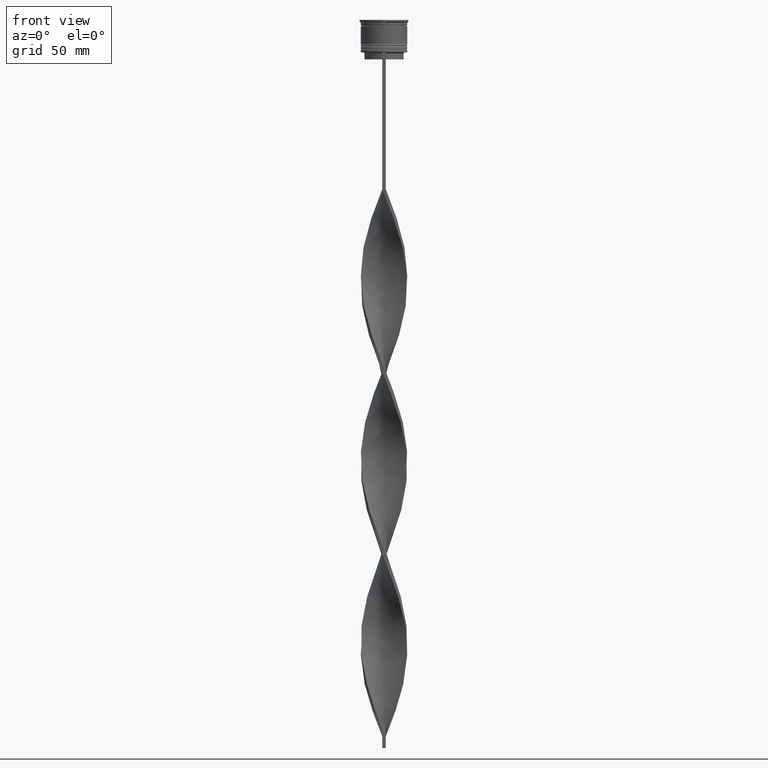
[diagram: clean part render]
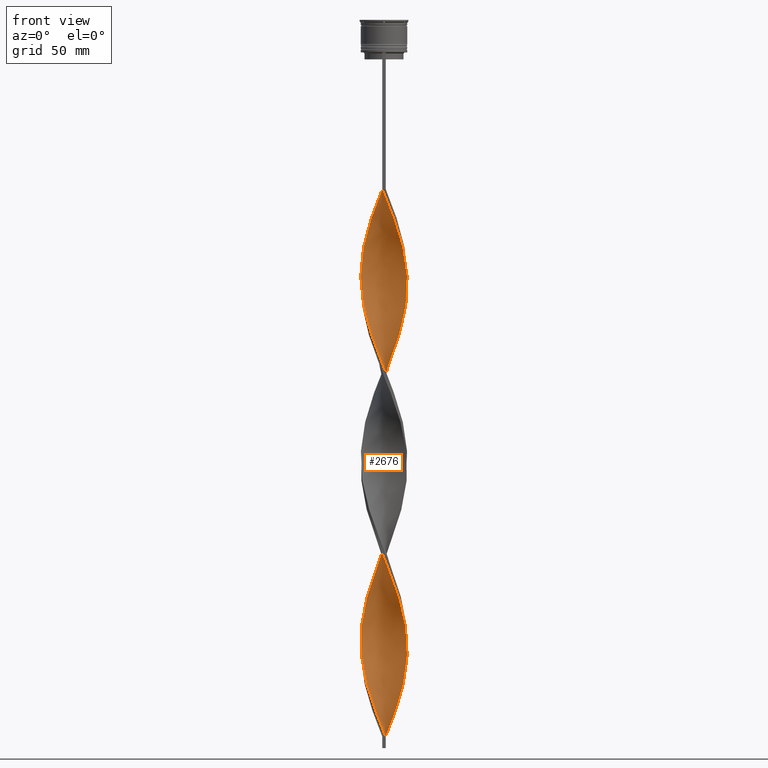
[diagram: same view with one face highlighted and labeled with its STEP entity id]
A machine part, front view. The second image highlights one B-rep face of the part: STEP entity #2676.
In plain terms, the highlighted face is a freeform B-spline surface patch.
Its self-contained STEP definition (entity closure, byte-faithful):
#3 = CARTESIAN_POINT ( 'NONE',  ( -7.601397897755391320, -6.540737725975566796, -210.6666666666666572 ) ) ;
#28 = CARTESIAN_POINT ( 'NONE',  ( 7.138980714781985704, -7.086630674828940712, -251.9666666666666970 ) ) ;
#34 = CARTESIAN_POINT ( 'NONE',  ( 8.979463439879785014, -4.533719918490543677, -259.8333333333334281 ) ) ;
#42 = CARTESIAN_POINT ( 'NONE',  ( -8.569572367079016928, -5.208159890536742331, -124.1333333333333400 ) ) ;
#45 = CARTESIAN_POINT ( 'NONE',  ( -3.073204743451139365, -9.578141394460878644, -224.4333333333333655 ) ) ;
#49 = CARTESIAN_POINT ( 'NONE',  ( 9.940973719881544213, -1.537017068246185447, -267.6999999999999318 ) ) ;
#59 = CARTESIAN_POINT ( 'NONE',  ( 3.143615391390497837, 9.555263588120851637, -220.5000000000000284 ) ) ;
#63 = CARTESIAN_POINT ( 'NONE',  ( -0.7499999999999997780, 9.999999999999998224, -73.00000000000001421 ) ) ;
#82 = CARTESIAN_POINT ( 'NONE',  ( 5.271089777143521893, 8.531008882968826867, -214.5999999999999943 ) ) ;
#87 = CARTESIAN_POINT ( 'NONE',  ( -3.803462330970837968, 9.278802417170323835, -80.86666666666667425 ) ) ;
#108 = CARTESIAN_POINT ( 'NONE',  ( -8.569572367079016928, -5.208159890536742331, -124.1333333333333400 ) ) ;
#128 = CARTESIAN_POINT ( 'NONE',  ( -7.601397897755385102, 6.540737725975564132, -92.66666666666667140 ) ) ;
#141 =( BOUNDED_SURFACE ( )  B_SPLINE_SURFACE ( 1, 2, ( 
 ( #2815, #2225, #3522, #1890, #2201, #3827, #1508, #3872, #1551, #3923, #1492, #253, #3893, #1845, #4206, #3240, #2159, #875, #902, #592, #2179, #3191, #2906, #4228, #572, #2834, #3570, #234, #1245, #3590, #3500, #3153, #2880, #4159, #1157, #3544, #2478, #3218, #855, #1226, #544, #2572, #2542, #524, #174, #928, #3172, #831, #4139, #209, #505, #1823, #1181, #3850, #1531, #4185, #1202, #1620, #2682, #1340, #1274, #3325, #682, #2005, #2619, #2956, #3959, #2934, #1991, #664, #3, #966, #3938, #1359, #336, #2290, #299, #45, #2332, #4278, #1293, #1309, #2640, #3017, #1657, #3985, #2994, #3639, #2347, #2598, #1641, #28, #3677, #643, #993, #4260, #2663, #3289, #2974, #1029, #3696, #4017, #1594, #1015, #1970, #3343, #2315, #946, #3311, #3660, #4001, #1909, #272, #359, #1681, #318, #3260, #2267, #3611, #611, #1937 ),
 ( #63, #3036, #2699, #378, #87, #2436, #2724, #3052, #763, #1697, #128, #1760, #2390, #4039, #3078, #1132, #2764, #2407, #3100, #3121, #2793, #1377, #148, #4062, #1065, #1444, #108, #3733, #737, #1777, #1081, #443, #4119, #2064, #3757, #1050, #2086, #459, #3431, #1424, #1108, #2742, #4098, #3786, #3405, #4078, #720, #785, #1470, #3451, #2107, #2456, #1406, #705, #2029, #3363, #2047, #2371, #3716, #3381, #419, #395, #1715, #1741, #803, #3565, #2851, #2218, #1151, #1489, #2830, #502, #1222, #1841, #3806, #188, #872, #205, #3212, #2517, #2473, #2538, #566, #1548, #169, #3867, #539, #4136, #2196, #2810, #1240, #3822, #1864, #3889, #228, #3148, #2875, #4201, #1504, #896, #824, #2155, #3495, #3236, #3537, #4153, #1819, #1885, #249, #3167, #1172, #3186, #1524, #1570, #2901, #4180, #4222, #2496, #2130, #3847, #3519 ) ),
 .UNSPECIFIED., .F., .F., .T. ) 
 B_SPLINE_SURFACE_WITH_KNOTS ( ( 2, 2 ),
 ( 3, 2, 2, 2, 2, 2, 2, 2, 2, 2, 2, 2, 2, 2, 2, 2, 2, 2, 2, 2, 2, 2, 2, 2, 2, 2, 2, 2, 2, 2, 2, 2, 2, 2, 2, 2, 2, 2, 2, 2, 2, 2, 2, 2, 2, 2, 2, 2, 2, 2, 2, 2, 2, 2, 2, 2, 2, 2, 2, 2, 3 ),
 ( 0.000000000000000000, 1.000000000000000000 ),
 ( 0.000000000000000000, 0.01250000000000000069, 0.02500000000000000139, 0.03749999999999999861, 0.05000000000000000278, 0.06250000000000000000, 0.07499999999999999722, 0.08749999999999999445, 0.1000000000000000056, 0.1125000000000000028, 0.1250000000000000000, 0.1375000000000000111, 0.1499999999999999944, 0.1625000000000000056, 0.1749999999999999889, 0.1875000000000000000, 0.2000000000000000111, 0.2124999999999999944, 0.2250000000000000056, 0.2374999999999999889, 0.2500000000000000000, 0.2625000000000000111, 0.2750000000000000222, 0.2874999999999999778, 0.2999999999999999889, 0.3125000000000000000, 0.3250000000000000111, 0.3375000000000000222, 0.3499999999999999778, 0.3624999999999999889, 0.3750000000000000000, 0.3875000000000000111, 0.4000000000000000222, 0.4124999999999999778, 0.4249999999999999889, 0.4375000000000000000, 0.4500000000000000111, 0.4625000000000000222, 0.4749999999999999778, 0.4874999999999999889, 0.5000000000000000000, 0.5124999999999999556, 0.5250000000000000222, 0.5374999999999999778, 0.5500000000000000444, 0.5625000000000000000, 0.5749999999999999556, 0.5875000000000000222, 0.5999999999999999778, 0.6125000000000000444, 0.6250000000000000000, 0.6374999999999999556, 0.6500000000000000222, 0.6624999999999999778, 0.6750000000000000444, 0.6875000000000000000, 0.6999999999999999556, 0.7125000000000000222, 0.7249999999999999778, 0.7375000000000000444, 0.7500000000000000000 ),
 .UNSPECIFIED. ) 
 GEOMETRIC_REPRESENTATION_ITEM ( )  RATIONAL_B_SPLINE_SURFACE ( (
 ( 1.000000000000000000, 0.9969173337331279638, 1.000000000000000000, 0.9969173337331279638, 1.000000000000000000, 0.9969173337331279638, 1.000000000000000000, 0.9969173337331279638, 1.000000000000000000, 0.9969173337331279638, 1.000000000000000000, 0.9969173337331279638, 1.000000000000000000, 0.9969173337331279638, 1.000000000000000000, 0.9969173337331279638, 1.000000000000000000, 0.9969173337331279638, 1.000000000000000000, 0.9969173337331279638, 1.000000000000000000, 0.9969173337331279638, 1.000000000000000000, 0.9969173337331279638, 1.000000000000000000, 0.9969173337331279638, 1.000000000000000000, 0.9969173337331279638, 1.000000000000000000, 0.9969173337331279638, 1.000000000000000000, 0.9969173337331279638, 1.000000000000000000, 0.9969173337331279638, 1.000000000000000000, 0.9969173337331279638, 1.000000000000000000, 0.9969173337331279638, 1.000000000000000000, 0.9969173337331279638, 1.000000000000000000, 0.9969173337331279638, 1.000000000000000000, 0.9969173337331279638, 1.000000000000000000, 0.9969173337331279638, 1.000000000000000000, 0.9969173337331279638, 1.000000000000000000, 0.9969173337331279638, 1.000000000000000000, 0.9969173337331279638, 1.000000000000000000, 0.9969173337331279638, 1.000000000000000000, 0.9969173337331279638, 1.000000000000000000, 0.9969173337331279638, 1.000000000000000000, 0.9969173337331279638, 1.000000000000000000, 0.9969173337331279638, 1.000000000000000000, 0.9969173337331279638, 1.000000000000000000, 0.9969173337331279638, 1.000000000000000000, 0.9969173337331279638, 1.000000000000000000, 0.9969173337331279638, 1.000000000000000000, 0.9969173337331279638, 1.000000000000000000, 0.9969173337331279638, 1.000000000000000000, 0.9969173337331279638, 1.000000000000000000, 0.9969173337331279638, 1.000000000000000000, 0.9969173337331279638, 1.000000000000000000, 0.9969173337331279638, 1.000000000000000000, 0.9969173337331279638, 1.000000000000000000, 0.9969173337331279638, 1.000000000000000000, 0.9969173337331279638, 1.000000000000000000, 0.9969173337331279638, 1.000000000000000000, 0.9969173337331279638, 1.000000000000000000, 0.9969173337331279638, 1.000000000000000000, 0.9969173337331279638, 1.000000000000000000, 0.9969173337331279638, 1.000000000000000000, 0.9969173337331279638, 1.000000000000000000, 0.9969173337331279638, 1.000000000000000000, 0.9969173337331279638, 1.000000000000000000, 0.9969173337331279638, 1.000000000000000000, 0.9969173337331279638, 1.000000000000000000, 0.9969173337331279638, 1.000000000000000000, 0.9969173337331279638, 1.000000000000000000, 0.9969173337331279638, 1.000000000000000000, 0.9969173337331279638, 1.000000000000000000, 0.9969173337331279638, 1.000000000000000000, 0.9969173337331279638, 1.000000000000000000),
 ( 1.000000000000000000, 0.9969173337331279638, 1.000000000000000000, 0.9969173337331279638, 1.000000000000000000, 0.9969173337331279638, 1.000000000000000000, 0.9969173337331279638, 1.000000000000000000, 0.9969173337331279638, 1.000000000000000000, 0.9969173337331279638, 1.000000000000000000, 0.9969173337331279638, 1.000000000000000000, 0.9969173337331279638, 1.000000000000000000, 0.9969173337331279638, 1.000000000000000000, 0.9969173337331279638, 1.000000000000000000, 0.9969173337331279638, 1.000000000000000000, 0.9969173337331279638, 1.000000000000000000, 0.9969173337331279638, 1.000000000000000000, 0.9969173337331279638, 1.000000000000000000, 0.9969173337331279638, 1.000000000000000000, 0.9969173337331279638, 1.000000000000000000, 0.9969173337331279638, 1.000000000000000000, 0.9969173337331279638, 1.000000000000000000, 0.9969173337331279638, 1.000000000000000000, 0.9969173337331279638, 1.000000000000000000, 0.9969173337331279638, 1.000000000000000000, 0.9969173337331279638, 1.000000000000000000, 0.9969173337331279638, 1.000000000000000000, 0.9969173337331279638, 1.000000000000000000, 0.9969173337331279638, 1.000000000000000000, 0.9969173337331279638, 1.000000000000000000, 0.9969173337331279638, 1.000000000000000000, 0.9969173337331279638, 1.000000000000000000, 0.9969173337331279638, 1.000000000000000000, 0.9969173337331279638, 1.000000000000000000, 0.9969173337331279638, 1.000000000000000000, 0.9969173337331279638, 1.000000000000000000, 0.9969173337331279638, 1.000000000000000000, 0.9969173337331279638, 1.000000000000000000, 0.9969173337331279638, 1.000000000000000000, 0.9969173337331279638, 1.000000000000000000, 0.9969173337331279638, 1.000000000000000000, 0.9969173337331279638, 1.000000000000000000, 0.9969173337331279638, 1.000000000000000000, 0.9969173337331279638, 1.000000000000000000, 0.9969173337331279638, 1.000000000000000000, 0.9969173337331279638, 1.000000000000000000, 0.9969173337331279638, 1.000000000000000000, 0.9969173337331279638, 1.000000000000000000, 0.9969173337331279638, 1.000000000000000000, 0.9969173337331279638, 1.000000000000000000, 0.9969173337331279638, 1.000000000000000000, 0.9969173337331279638, 1.000000000000000000, 0.9969173337331279638, 1.000000000000000000, 0.9969173337331279638, 1.000000000000000000, 0.9969173337331279638, 1.000000000000000000, 0.9969173337331279638, 1.000000000000000000, 0.9969173337331279638, 1.000000000000000000, 0.9969173337331279638, 1.000000000000000000, 0.9969173337331279638, 1.000000000000000000, 0.9969173337331279638, 1.000000000000000000, 0.9969173337331279638, 1.000000000000000000, 0.9969173337331279638, 1.000000000000000000, 0.9969173337331279638, 1.000000000000000000, 0.9969173337331279638, 1.000000000000000000) ) ) 
 REPRESENTATION_ITEM ( '' )  SURFACE ( )  );
#144 = CARTESIAN_POINT ( 'NONE',  ( -7.138980714781982151, 7.086630674828944265, -173.3000000000000114 ) ) ;
#148 = CARTESIAN_POINT ( 'NONE',  ( -9.759557557171204323, -2.305110905848660963, -116.2666666666666657 ) ) ;
#167 = CARTESIAN_POINT ( 'NONE',  ( -9.999999999999998224, -0.7499999999999991118, -269.6666666666666856 ) ) ;
#169 = CARTESIAN_POINT ( 'NONE',  ( -3.803462330970837968, 9.278802417170323835, -238.1999999999999886 ) ) ;
#174 = CARTESIAN_POINT ( 'NONE',  ( -2.376877556528109725, 9.742327908732752562, -159.5333333333333314 ) ) ;
#188 = CARTESIAN_POINT ( 'NONE',  ( 3.143615391390497837, 9.555263588120851637, -220.5000000000000284 ) ) ;
#205 = CARTESIAN_POINT ( 'NONE',  ( 1.610139721665724277, 9.929392229344635723, -224.4333333333333655 ) ) ;
#209 = CARTESIAN_POINT ( 'NONE',  ( -5.942494737169152330, 8.116165120681840150, -169.3666666666667027 ) ) ;
#217 = CARTESIAN_POINT ( 'NONE',  ( -9.929392229344644605, -1.610139721665721391, -196.9000000000000057 ) ) ;
#228 = CARTESIAN_POINT ( 'NONE',  ( -9.250558116688337051, 3.871650104254192204, -257.8666666666666742 ) ) ;
#234 = CARTESIAN_POINT ( 'NONE',  ( 8.945852645255826019, 4.599684817117895896, -126.1000000000000369 ) ) ;
#239 = CARTESIAN_POINT ( 'NONE',  ( -9.940973719881542436, 1.537017068246191220, -189.0333333333333314 ) ) ;
#249 = CARTESIAN_POINT ( 'NONE',  ( -7.649331004530118605, -6.484615268705939073, -285.3999999999999773 ) ) ;
#253 = CARTESIAN_POINT ( 'NONE',  ( 7.138980714781985704, -7.086630674828940712, -94.63333333333335418 ) ) ;
#259 = CARTESIAN_POINT ( 'NONE',  ( 0.7500000000000011102, 10.00000000000000533, -151.6666666666666856 ) ) ;
#260 = CARTESIAN_POINT ( 'NONE',  ( 7.601397897755384214, -6.540737725975565020, -171.3333333333333428 ) ) ;
#272 = CARTESIAN_POINT ( 'NONE',  ( 6.484615268705946178, 7.649331004530122158, -293.2666666666666515 ) ) ;
#279 = CARTESIAN_POINT ( 'NONE',  ( -5.271089777143522781, 8.531008882968833973, -167.4000000000000057 ) ) ;
#280 = CARTESIAN_POINT ( 'NONE',  ( 9.578141394460873315, 3.073204743451133591, -196.9000000000000057 ) ) ;
#299 = CARTESIAN_POINT ( 'NONE',  ( -3.803462330970843297, -9.278802417170329164, -222.4666666666666686 ) ) ;
#305 = CARTESIAN_POINT ( 'NONE',  ( -3.803462330970843741, -9.278802417170329164, -222.4666666666666686 ) ) ;
#309 = ORIENTED_EDGE ( 'NONE', *, *, #1265, .T. ) ;
#318 = CARTESIAN_POINT ( 'NONE',  ( 4.533719918490543677, 8.979463439879786790, -299.1666666666666856 ) ) ;
#323 = CARTESIAN_POINT ( 'NONE',  ( 8.159681294278264829, -5.882599862582952532, -255.9000000000000625 ) ) ;
#336 = CARTESIAN_POINT ( 'NONE',  ( -5.208159890536746772, -8.569572367079022257, -218.5333333333333314 ) ) ;
#340 = CARTESIAN_POINT ( 'NONE',  ( 5.271089777143523669, -8.531008882968833973, -246.0666666666666629 ) ) ;
#359 = CARTESIAN_POINT ( 'NONE',  ( 5.882599862582953421, 8.159681294278264829, -295.2333333333332916 ) ) ;
#364 = CARTESIAN_POINT ( 'NONE',  ( 9.759557557171209652, -2.305110905848663627, -265.7333333333333485 ) ) ;
#375 = CARTESIAN_POINT ( 'NONE',  ( -8.116165120681836598, 5.942494737169148777, -251.9666666666666686 ) ) ;
#378 = CARTESIAN_POINT ( 'NONE',  ( -3.073204743451139365, 9.578141394460869762, -78.90000000000003411 ) ) ;
#395 = CARTESIAN_POINT ( 'NONE',  ( 9.940973719881535331, 1.537017068246186557, -192.9666666666666970 ) ) ;
#406 = CARTESIAN_POINT ( 'NONE',  ( -5.271089777143521005, -8.531008882968826867, -135.9333333333333371 ) ) ;
#410 = CARTESIAN_POINT ( 'NONE',  ( 6.540737725975569461, -7.601397897755390431, -92.66666666666667140 ) ) ;
#412 = CARTESIAN_POINT ( 'NONE',  ( 6.540737725975565020, 7.601397897755383326, -210.6666666666666572 ) ) ;
#419 = CARTESIAN_POINT ( 'NONE',  ( 9.999999999999998224, 0.7499999999999980016, -191.0000000000000000 ) ) ;
#443 = CARTESIAN_POINT ( 'NONE',  ( -5.942494737169149666, -8.116165120681838374, -133.9666666666666686 ) ) ;
#449 = CARTESIAN_POINT ( 'NONE',  ( -5.208159890536742331, 8.569572367079016928, -84.80000000000001137 ) ) ;
#459 = CARTESIAN_POINT ( 'NONE',  ( -1.610139721665727608, -9.929392229344633947, -145.7666666666666515 ) ) ;
#466 = CARTESIAN_POINT ( 'NONE',  ( -6.484615268705940849, 7.649331004530118605, -88.73333333333334849 ) ) ;
#502 = CARTESIAN_POINT ( 'NONE',  ( 5.942494737169153218, 8.116165120681833045, -212.6333333333333826 ) ) ;
#505 = CARTESIAN_POINT ( 'NONE',  ( -6.540737725975568573, 7.601397897755391320, -171.3333333333333428 ) ) ;
#524 = CARTESIAN_POINT ( 'NONE',  ( -1.610139721665726720, 9.929392229344641052, -157.5666666666666629 ) ) ;
#529 = CARTESIAN_POINT ( 'NONE',  ( -0.03701706824618385128, 10.05902628011846822, -153.6333333333333826 ) ) ;
#539 = CARTESIAN_POINT ( 'NONE',  ( -5.208159890536742331, 8.569572367079016928, -242.1333333333333258 ) ) ;
#544 = CARTESIAN_POINT ( 'NONE',  ( 0.7500000000000009992, 10.00000000000000533, -151.6666666666666856 ) ) ;
#552 = CARTESIAN_POINT ( 'NONE',  ( -2.376877556528109725, 9.742327908732752562, -159.5333333333333314 ) ) ;
#566 = CARTESIAN_POINT ( 'NONE',  ( -2.305110905848661851, 9.759557557171204323, -234.2666666666666515 ) ) ;
#572 = CARTESIAN_POINT ( 'NONE',  ( 9.742327908732752562, 2.376877556528110169, -120.2000000000000028 ) ) ;
#578 = CARTESIAN_POINT ( 'NONE',  ( -9.278802417170329164, 3.803462330970842409, -183.1333333333333258 ) ) ;
#592 = CARTESIAN_POINT ( 'NONE',  ( 9.940973719881544213, -1.537017068246185225, -110.3666666666666600 ) ) ;
#596 = CARTESIAN_POINT ( 'NONE',  ( 9.555263588120860518, 3.143615391390493397, -279.4999999999999432 ) ) ;
#598 = CARTESIAN_POINT ( 'NONE',  ( 9.555263588120860518, 3.143615391390493397, -122.1666666666666856 ) ) ;
#599 = CARTESIAN_POINT ( 'NONE',  ( 9.759557557171204323, 2.305110905848659630, -194.9333333333333371 ) ) ;
#611 = CARTESIAN_POINT ( 'NONE',  ( 1.537017068246185891, 9.940973719881544213, -307.0333333333333030 ) ) ;
#620 = CARTESIAN_POINT ( 'NONE',  ( -3.143615391390492952, 9.555263588120860518, -161.5000000000000000 ) ) ;
#643 = CARTESIAN_POINT ( 'NONE',  ( 8.159681294278264829, -5.882599862582953421, -255.9000000000000909 ) ) ;
#647 = CARTESIAN_POINT ( 'NONE',  ( 7.086630674828940712, 7.138980714781985704, -291.3000000000000682 ) ) ;
#649 = CARTESIAN_POINT ( 'NONE',  ( 3.871650104254193980, -9.250558116688344157, -242.1333333333333258 ) ) ;
#650 = CARTESIAN_POINT ( 'NONE',  ( 8.531008882968826867, -5.271089777143521005, -175.2666666666666799 ) ) ;
#661 = CARTESIAN_POINT ( 'NONE',  ( 5.942494737169153218, 8.116165120681833045, -212.6333333333333826 ) ) ;
#664 = CARTESIAN_POINT ( 'NONE',  ( -8.116165120681840150, -5.942494737169155883, -208.7000000000000171 ) ) ;
#671 = CARTESIAN_POINT ( 'NONE',  ( -4.599684817117893232, -8.945852645255820690, -137.9000000000000625 ) ) ;
#672 = CARTESIAN_POINT ( 'NONE',  ( 0.7500000000000011102, 10.00000000000000533, -309.0000000000000000 ) ) ;
#682 = CARTESIAN_POINT ( 'NONE',  ( -9.994209254731556413, -0.8235783949559545292, -194.9333333333333371 ) ) ;
#705 = CARTESIAN_POINT ( 'NONE',  ( 8.945852645255820690, -4.599684817117889679, -177.2333333333333485 ) ) ;
#717 = CARTESIAN_POINT ( 'NONE',  ( 5.942494737169153218, -8.116165120681841927, -90.70000000000001705 ) ) ;
#720 = CARTESIAN_POINT ( 'NONE',  ( 5.208159890536741443, -8.569572367079016928, -163.4666666666666401 ) ) ;
#737 = CARTESIAN_POINT ( 'NONE',  ( -7.649331004530118605, -6.484615268705939073, -128.0666666666666629 ) ) ;
#757 = CARTESIAN_POINT ( 'NONE',  ( -9.578141394460871538, -3.073204743451138476, -118.2333333333333485 ) ) ;
#763 = CARTESIAN_POINT ( 'NONE',  ( -6.484615268705940849, 7.649331004530118605, -88.73333333333334849 ) ) ;
#782 = CARTESIAN_POINT ( 'NONE',  ( -9.578141394460871538, -3.073204743451138476, -275.5666666666666060 ) ) ;
#785 = CARTESIAN_POINT ( 'NONE',  ( 5.882599862582947203, -8.159681294278261277, -165.4333333333333655 ) ) ;
#786 = CARTESIAN_POINT ( 'NONE',  ( -8.945852645255820690, 4.599684817117893232, -98.56666666666669130 ) ) ;
#798 = CARTESIAN_POINT ( 'NONE',  ( -8.159681294278266606, 5.882599862582948980, -177.2333333333333485 ) ) ;
#803 = CARTESIAN_POINT ( 'NONE',  ( 9.278802417170323835, 3.803462330970836636, -198.8666666666666742 ) ) ;
#824 = CARTESIAN_POINT ( 'NONE',  ( -9.999999999999998224, -0.7499999999999991118, -269.6666666666666856 ) ) ;
#831 = CARTESIAN_POINT ( 'NONE',  ( -4.599684817117894120, 8.945852645255826019, -165.4333333333333655 ) ) ;
#847 = CARTESIAN_POINT ( 'NONE',  ( -10.05902628011846112, 0.03701706824618515579, -267.6999999999999318 ) ) ;
#855 = CARTESIAN_POINT ( 'NONE',  ( 2.305110905848663627, 9.759557557171209652, -147.7333333333333201 ) ) ;
#872 = CARTESIAN_POINT ( 'NONE',  ( 2.376877556528111057, 9.742327908732745456, -222.4666666666666686 ) ) ;
#875 = CARTESIAN_POINT ( 'NONE',  ( 9.578141394460876867, -3.073204743451141585, -106.4333333333333513 ) ) ;
#881 = CARTESIAN_POINT ( 'NONE',  ( 8.569572367079022257, -5.208159890536745884, -100.5333333333333314 ) ) ;
#896 = CARTESIAN_POINT ( 'NONE',  ( -10.05902628011846112, 0.03701706824618514885, -267.6999999999999318 ) ) ;
#897 = CARTESIAN_POINT ( 'NONE',  ( -0.8235783949559565276, -9.994209254731547531, -305.0666666666666629 ) ) ;
#902 = CARTESIAN_POINT ( 'NONE',  ( 9.759557557171209652, -2.305110905848663627, -108.3999999999999915 ) ) ;
#911 = CARTESIAN_POINT ( 'NONE',  ( 7.649331004530123934, -6.484615268705944402, -96.60000000000000853 ) ) ;
#928 = CARTESIAN_POINT ( 'NONE',  ( -3.143615391390492952, 9.555263588120860518, -161.5000000000000000 ) ) ;
#934 = CARTESIAN_POINT ( 'NONE',  ( -4.533719918490549006, -8.979463439879781461, -220.5000000000000284 ) ) ;
#946 = CARTESIAN_POINT ( 'NONE',  ( 8.945852645255826019, 4.599684817117895896, -283.4333333333333940 ) ) ;
#949 = CARTESIAN_POINT ( 'NONE',  ( 7.601397897755390431, 6.540737725975568573, -289.3333333333333144 ) ) ;
#951 = CARTESIAN_POINT ( 'NONE',  ( 1.537017068246186113, 9.940973719881544213, -149.7000000000000171 ) ) ;
#952 = CARTESIAN_POINT ( 'NONE',  ( -2.376877556528109725, -9.742327908732745456, -143.7999999999999829 ) ) ;
#962 = CARTESIAN_POINT ( 'NONE',  ( -2.376877556528109725, -9.742327908732745456, -301.1333333333333258 ) ) ;
#966 = CARTESIAN_POINT ( 'NONE',  ( -7.086630674828944265, -7.138980714781980375, -212.6333333333333826 ) ) ;
#973 = CARTESIAN_POINT ( 'NONE',  ( 2.376877556528110169, -9.742327908732750785, -238.1999999999999886 ) ) ;
#974 = CARTESIAN_POINT ( 'NONE',  ( 3.803462330970837524, -9.278802417170323835, -159.5333333333333314 ) ) ;
#989 = CARTESIAN_POINT ( 'NONE',  ( -5.208159890536742331, 8.569572367079016928, -242.1333333333333258 ) ) ;
#993 = CARTESIAN_POINT ( 'NONE',  ( 8.569572367079022257, -5.208159890536745884, -257.8666666666666742 ) ) ;
#1010 = CARTESIAN_POINT ( 'NONE',  ( 2.376877556528111057, 9.742327908732745456, -222.4666666666666686 ) ) ;
#1015 = CARTESIAN_POINT ( 'NONE',  ( 9.929392229344641052, 1.610139721665727164, -275.5666666666666060 ) ) ;
#1018 = CARTESIAN_POINT ( 'NONE',  ( 3.073204743451142029, 9.578141394460876867, -303.0999999999999659 ) ) ;
#1029 = CARTESIAN_POINT ( 'NONE',  ( 9.940973719881544213, -1.537017068246185225, -267.6999999999999318 ) ) ;
#1043 = CARTESIAN_POINT ( 'NONE',  ( 0.03701706824618504477, -10.05902628011846822, -74.96666666666668277 ) ) ;
#1050 = CARTESIAN_POINT ( 'NONE',  ( -3.143615391390492508, -9.555263588120853413, -141.8333333333333144 ) ) ;
#1060 = CARTESIAN_POINT ( 'NONE',  ( -3.871650104254192648, -9.250558116688337051, -139.8666666666666742 ) ) ;
#1062 = CARTESIAN_POINT ( 'NONE',  ( 4.599684817117895896, -8.945852645255826019, -86.76666666666666572 ) ) ;
#1065 = CARTESIAN_POINT ( 'NONE',  ( -9.278802417170323835, -3.803462330970837968, -120.2000000000000028 ) ) ;
#1081 = CARTESIAN_POINT ( 'NONE',  ( -6.540737725975564132, -7.601397897755384214, -132.0000000000000000 ) ) ;
#1083 = VERTEX_POINT ( 'NONE', #672 ) ;
#1101 = CARTESIAN_POINT ( 'NONE',  ( -9.940973719881535331, -1.537017068246183449, -114.3000000000000256 ) ) ;
#1108 = CARTESIAN_POINT ( 'NONE',  ( 0.7499999999999985567, -9.999999999999998224, -151.6666666666666856 ) ) ;
#1118 = CARTESIAN_POINT ( 'NONE',  ( -7.086630674828935383, 7.138980714781979486, -90.70000000000001705 ) ) ;
#1127 = CARTESIAN_POINT ( 'NONE',  ( -9.759557557171209652, 2.305110905848664071, -187.0666666666666629 ) ) ;
#1132 = CARTESIAN_POINT ( 'NONE',  ( -9.555263588120853413, 3.143615391390492064, -102.5000000000000000 ) ) ;
#1146 = CARTESIAN_POINT ( 'NONE',  ( -9.759557557171204323, -2.305110905848660963, -273.5999999999999659 ) ) ;
#1151 = CARTESIAN_POINT ( 'NONE',  ( 7.649331004530118605, 6.484615268705938185, -206.7333333333333201 ) ) ;
#1154 = EDGE_CURVE ( 'NONE', #2418, #1902, #2891, .T. ) ;
#1157 = CARTESIAN_POINT ( 'NONE',  ( 5.208159890536745884, 8.569572367079022257, -139.8666666666666742 ) ) ;
#1172 = CARTESIAN_POINT ( 'NONE',  ( -6.540737725975564132, -7.601397897755384214, -289.3333333333333144 ) ) ;
#1181 = CARTESIAN_POINT ( 'NONE',  ( -7.649331004530122158, 6.484615268705946178, -175.2666666666666799 ) ) ;
#1197 = CARTESIAN_POINT ( 'NONE',  ( 0.7500000000000002220, 3.333333333333337478, -309.0000000000000000 ) ) ;
#1202 = CARTESIAN_POINT ( 'NONE',  ( -9.278802417170329164, 3.803462330970842409, -183.1333333333333258 ) ) ;
#1210 = CARTESIAN_POINT ( 'NONE',  ( 4.533719918490543677, 8.979463439879785014, -141.8333333333333428 ) ) ;
#1222 = CARTESIAN_POINT ( 'NONE',  ( 5.271089777143521893, 8.531008882968826867, -214.5999999999999943 ) ) ;
#1226 = CARTESIAN_POINT ( 'NONE',  ( 1.537017068246185891, 9.940973719881544213, -149.7000000000000455 ) ) ;
#1231 = CARTESIAN_POINT ( 'NONE',  ( -7.601397897755391320, -6.540737725975566796, -210.6666666666666572 ) ) ;
#1232 = CARTESIAN_POINT ( 'NONE',  ( 9.555263588120851637, -3.143615391390496949, -181.1666666666666856 ) ) ;
#1240 = CARTESIAN_POINT ( 'NONE',  ( -7.601397897755385102, 6.540737725975564132, -250.0000000000000000 ) ) ;
#1241 = CARTESIAN_POINT ( 'NONE',  ( -9.929392229344633947, 1.610139721665727164, -106.4333333333333513 ) ) ;
#1245 = CARTESIAN_POINT ( 'NONE',  ( 8.531008882968833973, 5.271089777143522781, -128.0666666666666629 ) ) ;
#1257 = CARTESIAN_POINT ( 'NONE',  ( 9.994209254731556413, 0.8235783949559556394, -116.2666666666666657 ) ) ;
#1258 = CARTESIAN_POINT ( 'NONE',  ( 9.999999999999998224, 0.7499999999999980016, -191.0000000000000000 ) ) ;
#1265 = EDGE_CURVE ( 'NONE', #1902, #2587, #3382, .T. ) ;
#1272 = CARTESIAN_POINT ( 'NONE',  ( -3.073204743451139365, 9.578141394460869762, -78.90000000000001990 ) ) ;
#1274 = CARTESIAN_POINT ( 'NONE',  ( -10.00000000000000533, 0.7500000000000016653, -191.0000000000000000 ) ) ;
#1278 = CARTESIAN_POINT ( 'NONE',  ( 4.533719918490543677, 8.979463439879785014, -299.1666666666666856 ) ) ;
#1280 = CARTESIAN_POINT ( 'NONE',  ( 9.940973719881544213, -1.537017068246185447, -110.3666666666666742 ) ) ;
#1293 = CARTESIAN_POINT ( 'NONE',  ( -0.7499999999999997780, -10.00000000000000533, -230.3333333333333428 ) ) ;
#1299 = CARTESIAN_POINT ( 'NONE',  ( -3.073204743451139365, -9.578141394460878644, -224.4333333333333371 ) ) ;
#1300 = CARTESIAN_POINT ( 'NONE',  ( -0.03701706824618591213, -10.05902628011846112, -149.7000000000000171 ) ) ;
#1309 = CARTESIAN_POINT ( 'NONE',  ( 0.03701706824618514885, -10.05902628011846822, -232.3000000000000114 ) ) ;
#1340 = CARTESIAN_POINT ( 'NONE',  ( -9.940973719881542436, 1.537017068246190998, -189.0333333333333314 ) ) ;
#1344 = CARTESIAN_POINT ( 'NONE',  ( 5.208159890536745884, 8.569572367079022257, -297.2000000000000455 ) ) ;
#1354 = CARTESIAN_POINT ( 'NONE',  ( 0.8235783949559563055, -9.994209254731556413, -76.93333333333333712 ) ) ;
#1355 = CARTESIAN_POINT ( 'NONE',  ( 4.599684817117890567, 8.945852645255822466, -216.5666666666666629 ) ) ;
#1359 = CARTESIAN_POINT ( 'NONE',  ( -5.882599862582950756, -8.159681294278264829, -216.5666666666666629 ) ) ;
#1363 = CARTESIAN_POINT ( 'NONE',  ( 8.116165120681841927, 5.942494737169152330, -287.3666666666667311 ) ) ;
#1373 = CARTESIAN_POINT ( 'NONE',  ( -9.555263588120853413, 3.143615391390492064, -259.8333333333334281 ) ) ;
#1377 = CARTESIAN_POINT ( 'NONE',  ( -9.940973719881535331, -1.537017068246183449, -114.3000000000000398 ) ) ;
#1389 = CARTESIAN_POINT ( 'NONE',  ( -5.942494737169149666, -8.116165120681838374, -133.9666666666666686 ) ) ;
#1398 = CARTESIAN_POINT ( 'NONE',  ( -7.138980714781979486, -7.086630674828934495, -130.0333333333333314 ) ) ;
#1401 = CARTESIAN_POINT ( 'NONE',  ( -2.305110905848661851, 9.759557557171204323, -234.2666666666666515 ) ) ;
#1406 = CARTESIAN_POINT ( 'NONE',  ( 8.531008882968826867, -5.271089777143521005, -175.2666666666666799 ) ) ;
#1422 = CARTESIAN_POINT ( 'NONE',  ( 7.649331004530118605, 6.484615268705938185, -206.7333333333333201 ) ) ;
#1424 = CARTESIAN_POINT ( 'NONE',  ( -0.03701706824618591213, -10.05902628011846112, -149.7000000000000455 ) ) ;
#1442 = CARTESIAN_POINT ( 'NONE',  ( -9.940973719881535331, -1.537017068246183449, -271.6333333333332689 ) ) ;
#1444 = CARTESIAN_POINT ( 'NONE',  ( -8.979463439879779685, -4.533719918490539236, -122.1666666666666998 ) ) ;
#1464 = CARTESIAN_POINT ( 'NONE',  ( 8.159681294278264829, -5.882599862582952532, -98.56666666666669130 ) ) ;
#1470 = CARTESIAN_POINT ( 'NONE',  ( 6.484615268705939073, -7.649331004530118605, -167.4000000000000057 ) ) ;
#1489 = CARTESIAN_POINT ( 'NONE',  ( 7.138980714781978598, 7.086630674828938936, -208.7000000000000171 ) ) ;
#1492 = CARTESIAN_POINT ( 'NONE',  ( 6.540737725975569461, -7.601397897755390431, -92.66666666666667140 ) ) ;
#1504 = CARTESIAN_POINT ( 'NONE',  ( -9.994209254731549308, 0.8235783949559557504, -265.7333333333333485 ) ) ;
#1508 = CARTESIAN_POINT ( 'NONE',  ( 3.871650104254193980, -9.250558116688344157, -84.80000000000001137 ) ) ;
#1524 = CARTESIAN_POINT ( 'NONE',  ( -5.271089777143521005, -8.531008882968826867, -293.2666666666666515 ) ) ;
#1531 = CARTESIAN_POINT ( 'NONE',  ( -8.569572367079022257, 5.208159890536746772, -179.1999999999999886 ) ) ;
#1539 = CARTESIAN_POINT ( 'NONE',  ( -6.540737725975568573, 7.601397897755391320, -171.3333333333333428 ) ) ;
#1548 = CARTESIAN_POINT ( 'NONE',  ( -3.073204743451139365, 9.578141394460869762, -236.2333333333333769 ) ) ;
#1551 = CARTESIAN_POINT ( 'NONE',  ( 5.271089777143523669, -8.531008882968833973, -88.73333333333334849 ) ) ;
#1558 = CARTESIAN_POINT ( 'NONE',  ( -9.250558116688345933, -3.871650104254193092, -202.8000000000000114 ) ) ;
#1559 = CARTESIAN_POINT ( 'NONE',  ( 8.116165120681834821, -5.942494737169153218, -173.3000000000000114 ) ) ;
#1570 = CARTESIAN_POINT ( 'NONE',  ( -4.599684817117893232, -8.945852645255818913, -295.2333333333332916 ) ) ;
#1581 = CARTESIAN_POINT ( 'NONE',  ( -9.555263588120858742, -3.143615391390496505, -200.8333333333333428 ) ) ;
#1594 = CARTESIAN_POINT ( 'NONE',  ( 9.994209254731556413, 0.8235783949559557504, -273.5999999999999659 ) ) ;
#1601 = CARTESIAN_POINT ( 'NONE',  ( 10.00000000000000533, -0.7500000000000005551, -269.6666666666666856 ) ) ;
#1603 = CARTESIAN_POINT ( 'NONE',  ( -8.531008882968833973, -5.271089777143521893, -206.7333333333333201 ) ) ;
#1604 = CARTESIAN_POINT ( 'NONE',  ( 5.208159890536741443, -8.569572367079016928, -163.4666666666666401 ) ) ;
#1620 = CARTESIAN_POINT ( 'NONE',  ( -9.578141394460878644, 3.073204743451138476, -185.0999999999999659 ) ) ;
#1626 = CARTESIAN_POINT ( 'NONE',  ( -2.305110905848664515, -9.759557557171209652, -226.3999999999999773 ) ) ;
#1641 = CARTESIAN_POINT ( 'NONE',  ( 6.540737725975569461, -7.601397897755390431, -250.0000000000000000 ) ) ;
#1657 = CARTESIAN_POINT ( 'NONE',  ( 2.376877556528110169, -9.742327908732750785, -238.1999999999999886 ) ) ;
#1661 = CARTESIAN_POINT ( 'NONE',  ( 5.942494737169153218, -8.116165120681841927, -248.0333333333333599 ) ) ;
#1677 = CARTESIAN_POINT ( 'NONE',  ( -4.533719918490539236, 8.979463439879777908, -240.1666666666666856 ) ) ;
#1681 = CARTESIAN_POINT ( 'NONE',  ( 5.208159890536745884, 8.569572367079022257, -297.2000000000000455 ) ) ;
#1694 = CARTESIAN_POINT ( 'NONE',  ( 0.8235783949559576378, 9.994209254731547531, -226.3999999999999773 ) ) ;
#1697 = CARTESIAN_POINT ( 'NONE',  ( -7.086630674828936272, 7.138980714781979486, -90.70000000000001705 ) ) ;
#1711 = CARTESIAN_POINT ( 'NONE',  ( -7.649331004530118605, -6.484615268705939073, -128.0666666666666629 ) ) ;
#1712 = CARTESIAN_POINT ( 'NONE',  ( -9.994209254731549308, 0.8235783949559557504, -265.7333333333333485 ) ) ;
#1715 = CARTESIAN_POINT ( 'NONE',  ( 9.759557557171204323, 2.305110905848659630, -194.9333333333333371 ) ) ;
#1730 = EDGE_LOOP ( 'NONE', ( #3232, #309, #3851, #2883 ) ) ;
#1741 = CARTESIAN_POINT ( 'NONE',  ( 9.578141394460873315, 3.073204743451133591, -196.9000000000000057 ) ) ;
#1760 = CARTESIAN_POINT ( 'NONE',  ( -8.116165120681836598, 5.942494737169148777, -94.63333333333335418 ) ) ;
#1777 = CARTESIAN_POINT ( 'NONE',  ( -7.138980714781979486, -7.086630674828935383, -130.0333333333333314 ) ) ;
#1819 = CARTESIAN_POINT ( 'NONE',  ( -8.569572367079016928, -5.208159890536742331, -281.4666666666666401 ) ) ;
#1820 = CARTESIAN_POINT ( 'NONE',  ( -5.271089777143521005, -8.531008882968826867, -293.2666666666666515 ) ) ;
#1823 = CARTESIAN_POINT ( 'NONE',  ( -7.138980714781982151, 7.086630674828944265, -173.3000000000000114 ) ) ;
#1836 = CARTESIAN_POINT ( 'NONE',  ( -7.649331004530118605, -6.484615268705939073, -285.3999999999999773 ) ) ;
#1839 = CARTESIAN_POINT ( 'NONE',  ( 0.7499999999999985567, -9.999999999999998224, -309.0000000000000000 ) ) ;
#1841 = CARTESIAN_POINT ( 'NONE',  ( 4.599684817117890567, 8.945852645255820690, -216.5666666666666629 ) ) ;
#1845 = CARTESIAN_POINT ( 'NONE',  ( 8.159681294278264829, -5.882599862582953421, -98.56666666666669130 ) ) ;
#1852 = CARTESIAN_POINT ( 'NONE',  ( -9.994209254731556413, -0.8235783949559544181, -194.9333333333333371 ) ) ;
#1864 = CARTESIAN_POINT ( 'NONE',  ( -8.531008882968828644, 5.271089777143520116, -253.9333333333333371 ) ) ;
#1877 = CARTESIAN_POINT ( 'NONE',  ( -1.610139721665726498, 9.929392229344642828, -157.5666666666666913 ) ) ;
#1885 = CARTESIAN_POINT ( 'NONE',  ( -8.159681294278261277, -5.882599862582948980, -283.4333333333333940 ) ) ;
#1890 = CARTESIAN_POINT ( 'NONE',  ( 1.610139721665727608, -9.929392229344639276, -78.90000000000003411 ) ) ;
#1895 = CARTESIAN_POINT ( 'NONE',  ( -10.05902628011846822, -0.03701706824618764685, -192.9666666666666970 ) ) ;
#1902 = VERTEX_POINT ( 'NONE', #3067 ) ;
#1906 = B_SPLINE_CURVE_WITH_KNOTS ( 'NONE', 3,
 ( #2537, #1197, #4118, #1839 ),
 .UNSPECIFIED., .F., .F.,
 ( 4, 4 ),
 ( 0.000000000000000000, 1.000000000000000000 ),
 .UNSPECIFIED. ) ;
#1909 = CARTESIAN_POINT ( 'NONE',  ( 7.086630674828940712, 7.138980714781985704, -291.3000000000000682 ) ) ;
#1914 = CARTESIAN_POINT ( 'NONE',  ( 9.929392229344642828, 1.610139721665726942, -275.5666666666666060 ) ) ;
#1918 = CARTESIAN_POINT ( 'NONE',  ( 8.979463439879785014, -4.533719918490543677, -102.5000000000000142 ) ) ;
#1919 = CARTESIAN_POINT ( 'NONE',  ( 5.882599862582947203, -8.159681294278259500, -165.4333333333333371 ) ) ;
#1937 = CARTESIAN_POINT ( 'NONE',  ( 0.7500000000000009992, 10.00000000000000533, -309.0000000000000000 ) ) ;
#1948 = CARTESIAN_POINT ( 'NONE',  ( 6.484615268705946178, 7.649331004530122158, -293.2666666666666515 ) ) ;
#1950 = CARTESIAN_POINT ( 'NONE',  ( -5.942494737169152330, 8.116165120681841927, -169.3666666666667027 ) ) ;
#1970 = CARTESIAN_POINT ( 'NONE',  ( 9.742327908732752562, 2.376877556528110169, -277.5333333333333030 ) ) ;
#1975 = CARTESIAN_POINT ( 'NONE',  ( 8.945852645255822466, -4.599684817117889679, -177.2333333333333485 ) ) ;
#1986 = CARTESIAN_POINT ( 'NONE',  ( -6.484615268705940849, 7.649331004530118605, -246.0666666666666629 ) ) ;
#1991 = CARTESIAN_POINT ( 'NONE',  ( -8.531008882968833973, -5.271089777143521893, -206.7333333333333201 ) ) ;
#2003 = CARTESIAN_POINT ( 'NONE',  ( -1.537017068246184115, 9.940973719881535331, -74.96666666666668277 ) ) ;
#2005 = CARTESIAN_POINT ( 'NONE',  ( -9.929392229344642828, -1.610139721665721391, -196.9000000000000057 ) ) ;
#2026 = CARTESIAN_POINT ( 'NONE',  ( 8.159681294278261277, 5.882599862582942762, -204.7666666666666799 ) ) ;
#2029 = CARTESIAN_POINT ( 'NONE',  ( 9.250558116688337051, -3.871650104254192648, -179.1999999999999886 ) ) ;
#2044 = CARTESIAN_POINT ( 'NONE',  ( -9.929392229344633947, 1.610139721665727164, -263.7666666666667084 ) ) ;
#2047 = CARTESIAN_POINT ( 'NONE',  ( 9.742327908732745456, -2.376877556528110169, -183.1333333333333258 ) ) ;
#2062 = CARTESIAN_POINT ( 'NONE',  ( -3.073204743451139365, 9.578141394460869762, -236.2333333333333485 ) ) ;
#2064 = CARTESIAN_POINT ( 'NONE',  ( -4.599684817117893232, -8.945852645255818913, -137.9000000000000625 ) ) ;
#2086 = CARTESIAN_POINT ( 'NONE',  ( -2.376877556528109725, -9.742327908732745456, -143.7999999999999829 ) ) ;
#2104 = CARTESIAN_POINT ( 'NONE',  ( -6.540737725975564132, -7.601397897755384214, -289.3333333333333144 ) ) ;
#2107 = CARTESIAN_POINT ( 'NONE',  ( 7.601397897755384214, -6.540737725975565020, -171.3333333333333428 ) ) ;
#2115 = CARTESIAN_POINT ( 'NONE',  ( 0.7499999999999985567, -9.999999999999998224, -309.0000000000000000 ) ) ;
#2124 = CARTESIAN_POINT ( 'NONE',  ( 8.531008882968833973, 5.271089777143522781, -128.0666666666666629 ) ) ;
#2130 = CARTESIAN_POINT ( 'NONE',  ( -0.8235783949559565276, -9.994209254731547531, -305.0666666666666629 ) ) ;
#2155 = CARTESIAN_POINT ( 'NONE',  ( -9.940973719881535331, -1.537017068246183449, -271.6333333333332689 ) ) ;
#2159 = CARTESIAN_POINT ( 'NONE',  ( 9.278802417170329164, -3.803462330970841521, -104.4666666666666828 ) ) ;
#2179 = CARTESIAN_POINT ( 'NONE',  ( 10.00000000000000533, -0.7500000000000004441, -112.3333333333333428 ) ) ;
#2196 = CARTESIAN_POINT ( 'NONE',  ( -6.484615268705940849, 7.649331004530118605, -246.0666666666666629 ) ) ;
#2197 = CARTESIAN_POINT ( 'NONE',  ( -3.871650104254192648, -9.250558116688337051, -297.2000000000000455 ) ) ;
#2201 = CARTESIAN_POINT ( 'NONE',  ( 2.376877556528110169, -9.742327908732750785, -80.86666666666667425 ) ) ;
#2206 = CARTESIAN_POINT ( 'NONE',  ( 9.742327908732752562, 2.376877556528110169, -120.2000000000000028 ) ) ;
#2218 = CARTESIAN_POINT ( 'NONE',  ( 8.159681294278263053, 5.882599862582942762, -204.7666666666666799 ) ) ;
#2225 = CARTESIAN_POINT ( 'NONE',  ( 0.03701706824618514885, -10.05902628011846822, -74.96666666666668277 ) ) ;
#2234 = CARTESIAN_POINT ( 'NONE',  ( 2.305110905848663627, 9.759557557171209652, -147.7333333333333201 ) ) ;
#2243 = CARTESIAN_POINT ( 'NONE',  ( -10.05902628011846112, 0.03701706824618515579, -110.3666666666666742 ) ) ;
#2253 = CARTESIAN_POINT ( 'NONE',  ( 9.929392229344642828, 1.610139721665726942, -118.2333333333333485 ) ) ;
#2267 = CARTESIAN_POINT ( 'NONE',  ( 3.073204743451142029, 9.578141394460876867, -303.0999999999999659 ) ) ;
#2271 = CARTESIAN_POINT ( 'NONE',  ( 10.05902628011846822, 0.03701706824618439945, -271.6333333333332689 ) ) ;
#2273 = CARTESIAN_POINT ( 'NONE',  ( -0.8235783949559550843, 9.994209254731556413, -155.6000000000000227 ) ) ;
#2290 = CARTESIAN_POINT ( 'NONE',  ( -4.533719918490549006, -8.979463439879783238, -220.5000000000000284 ) ) ;
#2300 = CARTESIAN_POINT ( 'NONE',  ( 3.143615391390493841, -9.555263588120860518, -240.1666666666666856 ) ) ;
#2315 = CARTESIAN_POINT ( 'NONE',  ( 9.250558116688344157, 3.871650104254193980, -281.4666666666666401 ) ) ;
#2318 = CARTESIAN_POINT ( 'NONE',  ( 9.250558116688344157, 3.871650104254193980, -281.4666666666666401 ) ) ;
#2328 = CARTESIAN_POINT ( 'NONE',  ( 8.569572367079016928, 5.208159890536742331, -202.8000000000000114 ) ) ;
#2330 = CARTESIAN_POINT ( 'NONE',  ( -0.7499999999999997780, 9.999999999999998224, -73.00000000000001421 ) ) ;
#2332 = CARTESIAN_POINT ( 'NONE',  ( -2.305110905848664515, -9.759557557171209652, -226.3999999999999773 ) ) ;
#2335 = CARTESIAN_POINT ( 'NONE',  ( 2.305110905848663627, 9.759557557171209652, -305.0666666666666629 ) ) ;
#2344 = CARTESIAN_POINT ( 'NONE',  ( -8.531008882968828644, 5.271089777143520116, -253.9333333333333371 ) ) ;
#2347 = CARTESIAN_POINT ( 'NONE',  ( 5.271089777143523669, -8.531008882968833973, -246.0666666666666629 ) ) ;
#2369 = CARTESIAN_POINT ( 'NONE',  ( -7.086630674828935383, 7.138980714781979486, -248.0333333333333599 ) ) ;
#2371 = CARTESIAN_POINT ( 'NONE',  ( 9.929392229344635723, -1.610139721665723833, -185.0999999999999659 ) ) ;
#2388 = CARTESIAN_POINT ( 'NONE',  ( 5.271089777143523669, -8.531008882968833973, -88.73333333333334849 ) ) ;
#2390 = CARTESIAN_POINT ( 'NONE',  ( -8.531008882968828644, 5.271089777143520116, -96.60000000000000853 ) ) ;
#2407 = CARTESIAN_POINT ( 'NONE',  ( -9.929392229344633947, 1.610139721665727164, -106.4333333333333513 ) ) ;
#2418 = VERTEX_POINT ( 'NONE', #3043 ) ;
#2432 = CARTESIAN_POINT ( 'NONE',  ( -8.159681294278259500, -5.882599862582948091, -283.4333333333333940 ) ) ;
#2436 = CARTESIAN_POINT ( 'NONE',  ( -4.533719918490539236, 8.979463439879779685, -82.83333333333335702 ) ) ;
#2443 = CARTESIAN_POINT ( 'NONE',  ( -7.601397897755385102, 6.540737725975564132, -92.66666666666667140 ) ) ;
#2450 = CARTESIAN_POINT ( 'NONE',  ( -10.00000000000000533, 0.7500000000000017764, -191.0000000000000000 ) ) ;
#2456 = CARTESIAN_POINT ( 'NONE',  ( 8.116165120681834821, -5.942494737169153218, -173.3000000000000114 ) ) ;
#2473 = CARTESIAN_POINT ( 'NONE',  ( -0.7499999999999997780, 9.999999999999998224, -230.3333333333333428 ) ) ;
#2478 = CARTESIAN_POINT ( 'NONE',  ( 3.803462330970841521, 9.278802417170329164, -143.7999999999999829 ) ) ;
#2496 = CARTESIAN_POINT ( 'NONE',  ( -1.610139721665727608, -9.929392229344633947, -303.0999999999999659 ) ) ;
#2503 = FACE_OUTER_BOUND ( 'NONE', #1730, .T. ) ;
#2517 = CARTESIAN_POINT ( 'NONE',  ( 0.03701706824619144937, 10.05902628011846289, -228.3666666666666458 ) ) ;
#2527 = CARTESIAN_POINT ( 'NONE',  ( 3.803462330970841965, 9.278802417170329164, -143.7999999999999829 ) ) ;
#2537 = CARTESIAN_POINT ( 'NONE',  ( 0.7500000000000011102, 10.00000000000000533, -309.0000000000000000 ) ) ;
#2538 = CARTESIAN_POINT ( 'NONE',  ( -1.537017068246184115, 9.940973719881535331, -232.3000000000000114 ) ) ;
#2542 = CARTESIAN_POINT ( 'NONE',  ( -0.8235783949559551953, 9.994209254731556413, -155.6000000000000227 ) ) ;
#2547 = CARTESIAN_POINT ( 'NONE',  ( -7.086630674828944265, -7.138980714781980375, -212.6333333333333826 ) ) ;
#2548 = CARTESIAN_POINT ( 'NONE',  ( 9.742327908732745456, -2.376877556528110169, -183.1333333333333258 ) ) ;
#2564 = CARTESIAN_POINT ( 'NONE',  ( -9.994209254731549308, 0.8235783949559557504, -108.3999999999999915 ) ) ;
#2572 = CARTESIAN_POINT ( 'NONE',  ( -0.03701706824618396924, 10.05902628011846822, -153.6333333333333826 ) ) ;
#2580 = CARTESIAN_POINT ( 'NONE',  ( -5.882599862582949868, -8.159681294278264829, -216.5666666666666629 ) ) ;
#2587 = VERTEX_POINT ( 'NONE', #2115 ) ;
#2598 = CARTESIAN_POINT ( 'NONE',  ( 5.942494737169153218, -8.116165120681840150, -248.0333333333333314 ) ) ;
#2604 = CARTESIAN_POINT ( 'NONE',  ( 5.882599862582952532, 8.159681294278264829, -137.9000000000000625 ) ) ;
#2619 = CARTESIAN_POINT ( 'NONE',  ( -9.742327908732752562, -2.376877556528108837, -198.8666666666666742 ) ) ;
#2626 = CARTESIAN_POINT ( 'NONE',  ( 0.03701706824618504477, -10.05902628011846822, -232.3000000000000398 ) ) ;
#2640 = CARTESIAN_POINT ( 'NONE',  ( 0.8235783949559564165, -9.994209254731556413, -234.2666666666666515 ) ) ;
#2651 = DIRECTION ( 'NONE',  ( 0.000000000000000000, 1.000000000000000000, 0.000000000000000000 ) ) ;
#2663 = CARTESIAN_POINT ( 'NONE',  ( 9.278802417170329164, -3.803462330970841521, -261.7999999999999545 ) ) ;
#2676 = ADVANCED_FACE ( 'NONE', ( #2503 ), #141, .T. ) ;
#2677 = CARTESIAN_POINT ( 'NONE',  ( -5.882599862582948091, 8.159681294278259500, -244.0999999999999943 ) ) ;
#2682 = CARTESIAN_POINT ( 'NONE',  ( -9.759557557171209652, 2.305110905848664071, -187.0666666666666629 ) ) ;
#2685 = CARTESIAN_POINT ( 'NONE',  ( 8.569572367079022257, -5.208159890536745884, -257.8666666666666742 ) ) ;
#2696 = CARTESIAN_POINT ( 'NONE',  ( -9.742327908732745456, 2.376877556528109725, -261.7999999999999545 ) ) ;
#2699 = CARTESIAN_POINT ( 'NONE',  ( -2.305110905848661851, 9.759557557171204323, -76.93333333333333712 ) ) ;
#2724 = CARTESIAN_POINT ( 'NONE',  ( -5.208159890536742331, 8.569572367079016928, -84.80000000000001137 ) ) ;
#2740 = CARTESIAN_POINT ( 'NONE',  ( 7.138980714781978598, 7.086630674828938048, -208.7000000000000171 ) ) ;
#2742 = CARTESIAN_POINT ( 'NONE',  ( 1.537017068246182783, -9.940973719881535331, -153.6333333333333826 ) ) ;
#2761 = CARTESIAN_POINT ( 'NONE',  ( -9.278802417170323835, -3.803462330970837968, -277.5333333333333030 ) ) ;
#2764 = CARTESIAN_POINT ( 'NONE',  ( -9.742327908732745456, 2.376877556528109725, -104.4666666666666828 ) ) ;
#2787 = CARTESIAN_POINT ( 'NONE',  ( 9.759557557171209652, -2.305110905848663627, -108.3999999999999915 ) ) ;
#2793 = CARTESIAN_POINT ( 'NONE',  ( -9.999999999999998224, -0.7499999999999991118, -112.3333333333333428 ) ) ;
#2810 = CARTESIAN_POINT ( 'NONE',  ( -7.086630674828936272, 7.138980714781979486, -248.0333333333333314 ) ) ;
#2815 = CARTESIAN_POINT ( 'NONE',  ( -0.7499999999999997780, -10.00000000000000533, -73.00000000000001421 ) ) ;
#2830 = CARTESIAN_POINT ( 'NONE',  ( 6.540737725975565020, 7.601397897755383326, -210.6666666666666572 ) ) ;
#2834 = CARTESIAN_POINT ( 'NONE',  ( 9.555263588120860518, 3.143615391390493397, -122.1666666666666998 ) ) ;
#2851 = CARTESIAN_POINT ( 'NONE',  ( 8.569572367079016928, 5.208159890536742331, -202.8000000000000114 ) ) ;
#2865 = CARTESIAN_POINT ( 'NONE',  ( 8.945852645255826019, 4.599684817117895896, -126.1000000000000227 ) ) ;
#2875 = CARTESIAN_POINT ( 'NONE',  ( -9.742327908732745456, 2.376877556528109725, -261.7999999999999545 ) ) ;
#2880 = CARTESIAN_POINT ( 'NONE',  ( 6.484615268705946178, 7.649331004530122158, -135.9333333333333371 ) ) ;
#2883 = ORIENTED_EDGE ( 'NONE', *, *, #3073, .F. ) ;
#2888 = CARTESIAN_POINT ( 'NONE',  ( -8.945852645255827795, -4.599684817117891455, -204.7666666666666799 ) ) ;
#2889 = CARTESIAN_POINT ( 'NONE',  ( 9.250558116688337051, -3.871650104254192648, -179.1999999999999886 ) ) ;
#2891 = LINE ( 'NONE', #4212, #3839 ) ;
#2901 = CARTESIAN_POINT ( 'NONE',  ( -3.871650104254192648, -9.250558116688337051, -297.2000000000000455 ) ) ;
#2902 = CARTESIAN_POINT ( 'NONE',  ( -9.555263588120853413, 3.143615391390492064, -102.5000000000000142 ) ) ;
#2906 = CARTESIAN_POINT ( 'NONE',  ( 9.994209254731556413, 0.8235783949559557504, -116.2666666666666657 ) ) ;
#2912 = CARTESIAN_POINT ( 'NONE',  ( 7.601397897755390431, 6.540737725975568573, -132.0000000000000000 ) ) ;
#2913 = CARTESIAN_POINT ( 'NONE',  ( 9.929392229344635723, -1.610139721665723833, -185.0999999999999943 ) ) ;
#2934 = CARTESIAN_POINT ( 'NONE',  ( -8.945852645255827795, -4.599684817117891455, -204.7666666666666799 ) ) ;
#2940 = CARTESIAN_POINT ( 'NONE',  ( 9.994209254731556413, 0.8235783949559556394, -273.5999999999999659 ) ) ;
#2942 = CARTESIAN_POINT ( 'NONE',  ( -8.116165120681841927, -5.942494737169155883, -208.7000000000000171 ) ) ;
#2956 = CARTESIAN_POINT ( 'NONE',  ( -9.555263588120858742, -3.143615391390496949, -200.8333333333333428 ) ) ;
#2960 = CARTESIAN_POINT ( 'NONE',  ( 8.531008882968833973, 5.271089777143522781, -285.3999999999999773 ) ) ;
#2962 = CARTESIAN_POINT ( 'NONE',  ( 0.8235783949559563055, -9.994209254731556413, -234.2666666666666515 ) ) ;
#2974 = CARTESIAN_POINT ( 'NONE',  ( 9.759557557171209652, -2.305110905848663627, -265.7333333333333485 ) ) ;
#2994 = CARTESIAN_POINT ( 'NONE',  ( 3.871650104254193980, -9.250558116688344157, -242.1333333333333258 ) ) ;
#3001 = CARTESIAN_POINT ( 'NONE',  ( 9.578141394460876867, -3.073204743451141585, -263.7666666666667084 ) ) ;
#3012 = CARTESIAN_POINT ( 'NONE',  ( -9.759557557171204323, -2.305110905848660963, -116.2666666666666657 ) ) ;
#3013 = CARTESIAN_POINT ( 'NONE',  ( -1.537017068246184115, 9.940973719881535331, -232.3000000000000398 ) ) ;
#3017 = CARTESIAN_POINT ( 'NONE',  ( 1.610139721665727608, -9.929392229344639276, -236.2333333333333769 ) ) ;
#3021 = CARTESIAN_POINT ( 'NONE',  ( 5.882599862582952532, 8.159681294278264829, -295.2333333333333485 ) ) ;
#3033 = CARTESIAN_POINT ( 'NONE',  ( -9.250558116688337051, 3.871650104254192204, -257.8666666666666742 ) ) ;
#3036 = CARTESIAN_POINT ( 'NONE',  ( -1.537017068246184115, 9.940973719881535331, -74.96666666666668277 ) ) ;
#3043 = CARTESIAN_POINT ( 'NONE',  ( -0.7499999999999998890, -10.00000000000000533, -73.00000000000001421 ) ) ;
#3050 = CARTESIAN_POINT ( 'NONE',  ( 1.610139721665727386, -9.929392229344641052, -78.90000000000001990 ) ) ;
#3052 = CARTESIAN_POINT ( 'NONE',  ( -5.882599862582948980, 8.159681294278261277, -86.76666666666666572 ) ) ;
#3064 = CARTESIAN_POINT ( 'NONE',  ( -8.531008882968828644, 5.271089777143520116, -96.60000000000000853 ) ) ;
#3067 = CARTESIAN_POINT ( 'NONE',  ( -0.7499999999999997780, 9.999999999999998224, -73.00000000000001421 ) ) ;
#3073 = EDGE_CURVE ( 'NONE', #2418, #1083, #4127, .T. ) ;
#3074 = CARTESIAN_POINT ( 'NONE',  ( 7.138980714781985704, -7.086630674828939824, -94.63333333333335418 ) ) ;
#3075 = CARTESIAN_POINT ( 'NONE',  ( -0.7499999999999997780, 9.999999999999998224, -230.3333333333333428 ) ) ;
#3078 = CARTESIAN_POINT ( 'NONE',  ( -9.250558116688337051, 3.871650104254192204, -100.5333333333333314 ) ) ;
#3100 = CARTESIAN_POINT ( 'NONE',  ( -9.994209254731549308, 0.8235783949559557504, -108.3999999999999915 ) ) ;
#3117 = CARTESIAN_POINT ( 'NONE',  ( -0.7499999999999998890, -10.00000000000000533, -73.00000000000001421 ) ) ;
#3121 = CARTESIAN_POINT ( 'NONE',  ( -10.05902628011846112, 0.03701706824618514885, -110.3666666666666600 ) ) ;
#3144 = CARTESIAN_POINT ( 'NONE',  ( 0.7499999999999985567, -9.999999999999998224, -309.0000000000000000 ) ) ;
#3148 = CARTESIAN_POINT ( 'NONE',  ( -9.555263588120853413, 3.143615391390492064, -259.8333333333334281 ) ) ;
#3153 = CARTESIAN_POINT ( 'NONE',  ( 7.086630674828940712, 7.138980714781985704, -133.9666666666666686 ) ) ;
#3167 = CARTESIAN_POINT ( 'NONE',  ( -7.138980714781979486, -7.086630674828935383, -287.3666666666667311 ) ) ;
#3172 = CARTESIAN_POINT ( 'NONE',  ( -3.871650104254193092, 9.250558116688344157, -163.4666666666666401 ) ) ;
#3186 = CARTESIAN_POINT ( 'NONE',  ( -5.942494737169149666, -8.116165120681838374, -291.3000000000000682 ) ) ;
#3187 = CARTESIAN_POINT ( 'NONE',  ( -4.599684817117893232, -8.945852645255820690, -295.2333333333333485 ) ) ;
#3191 = CARTESIAN_POINT ( 'NONE',  ( 10.05902628011846822, 0.03701706824618451047, -114.3000000000000398 ) ) ;
#3197 = CARTESIAN_POINT ( 'NONE',  ( -8.979463439879781461, 4.533719918490548118, -181.1666666666666856 ) ) ;
#3212 = CARTESIAN_POINT ( 'NONE',  ( 0.8235783949559576378, 9.994209254731547531, -226.3999999999999773 ) ) ;
#3218 = CARTESIAN_POINT ( 'NONE',  ( 3.073204743451142029, 9.578141394460876867, -145.7666666666666515 ) ) ;
#3225 = CARTESIAN_POINT ( 'NONE',  ( -4.599684817117894120, 8.945852645255826019, -165.4333333333333371 ) ) ;
#3226 = CARTESIAN_POINT ( 'NONE',  ( 0.7499999999999985567, -9.999999999999998224, -151.6666666666666856 ) ) ;
#3232 = ORIENTED_EDGE ( 'NONE', *, *, #1154, .T. ) ;
#3236 = CARTESIAN_POINT ( 'NONE',  ( -9.578141394460871538, -3.073204743451138476, -275.5666666666666060 ) ) ;
#3240 = CARTESIAN_POINT ( 'NONE',  ( 8.979463439879786790, -4.533719918490542788, -102.5000000000000000 ) ) ;
#3246 = CARTESIAN_POINT ( 'NONE',  ( -9.742327908732752562, -2.376877556528108837, -198.8666666666666742 ) ) ;
#3247 = CARTESIAN_POINT ( 'NONE',  ( -0.8235783949559565276, -9.994209254731547531, -147.7333333333333201 ) ) ;
#3260 = CARTESIAN_POINT ( 'NONE',  ( 3.803462330970841521, 9.278802417170329164, -301.1333333333333258 ) ) ;
#3265 = CARTESIAN_POINT ( 'NONE',  ( 8.945852645255826019, 4.599684817117895896, -283.4333333333333940 ) ) ;
#3267 = CARTESIAN_POINT ( 'NONE',  ( 5.208159890536745884, 8.569572367079022257, -139.8666666666666742 ) ) ;
#3268 = CARTESIAN_POINT ( 'NONE',  ( 2.305110905848660519, -9.759557557171204323, -155.6000000000000227 ) ) ;
#3277 = EDGE_CURVE ( 'NONE', #1083, #2587, #1906, .T. ) ;
#3289 = CARTESIAN_POINT ( 'NONE',  ( 9.578141394460876867, -3.073204743451141585, -263.7666666666667652 ) ) ;
#3295 = CARTESIAN_POINT ( 'NONE',  ( 0.7500000000000011102, 10.00000000000000533, -309.0000000000000000 ) ) ;
#3297 = CARTESIAN_POINT ( 'NONE',  ( -1.537017068246191664, -9.940973719881542436, -228.3666666666666742 ) ) ;
#3311 = CARTESIAN_POINT ( 'NONE',  ( 8.531008882968833973, 5.271089777143522781, -285.3999999999999773 ) ) ;
#3322 = CARTESIAN_POINT ( 'NONE',  ( 9.278802417170323835, 3.803462330970836636, -198.8666666666666742 ) ) ;
#3325 = CARTESIAN_POINT ( 'NONE',  ( -10.05902628011846822, -0.03701706824618775094, -192.9666666666666970 ) ) ;
#3329 = CARTESIAN_POINT ( 'NONE',  ( 6.540737725975569461, -7.601397897755390431, -250.0000000000000000 ) ) ;
#3343 = CARTESIAN_POINT ( 'NONE',  ( 9.555263588120860518, 3.143615391390493397, -279.4999999999999432 ) ) ;
#3363 = CARTESIAN_POINT ( 'NONE',  ( 9.555263588120851637, -3.143615391390496949, -181.1666666666667140 ) ) ;
#3378 = CARTESIAN_POINT ( 'NONE',  ( -8.159681294278259500, -5.882599862582948091, -126.1000000000000227 ) ) ;
#3381 = CARTESIAN_POINT ( 'NONE',  ( 10.05902628011846289, -0.03701706824619090813, -189.0333333333333314 ) ) ;
#3382 =( BOUNDED_CURVE ( )  B_SPLINE_CURVE ( 2, ( #2330, #2003, #3921, #1272, #3936, #3609, #449, #3438, #466, #1118, #2443, #3391, #3064, #786, #3496, #2902, #4223, #1241, #2564, #2243, #3753, #1101, #3012, #757, #4032, #3428, #42, #3378, #1711, #1398, #3400, #1389, #406, #671, #1060, #3550, #952, #4285, #3247, #1300, #3226, #4191, #3268, #4211, #974, #3945, #1604, #1919, #3647, #3597, #260, #1559, #650, #1975, #2889, #1232, #2548, #2913, #4236, #3900, #1258, #3929, #599, #280, #3322, #4034, #2328, #2026, #1422, #2740, #412, #661, #82, #1355, #4059, #59, #1010, #3673, #1694, #3714, #3075, #3013, #1401, #2062, #3402, #1677, #989, #2677, #1986, #2369, #4014, #375, #2344, #3690, #3033, #1373, #2696, #2044, #1712, #847, #167, #1442, #1146, #782, #2761, #3491, #3513, #2432, #1836, #3782, #2104, #3868, #1820, #3187, #2197, #4224, #962, #3633, #897, #4132, #3144 ),
 .UNSPECIFIED., .F., .T. ) 
 B_SPLINE_CURVE_WITH_KNOTS ( ( 3, 2, 2, 2, 2, 2, 2, 2, 2, 2, 2, 2, 2, 2, 2, 2, 2, 2, 2, 2, 2, 2, 2, 2, 2, 2, 2, 2, 2, 2, 2, 2, 2, 2, 2, 2, 2, 2, 2, 2, 2, 2, 2, 2, 2, 2, 2, 2, 2, 2, 2, 2, 2, 2, 2, 2, 2, 2, 2, 2, 3 ),
 ( 0.000000000000000000, 0.01250000000000000243, 0.02500000000000000486, 0.03749999999999999861, 0.05000000000000000971, 0.06250000000000000000, 0.07499999999999999722, 0.08749999999999998057, 0.1000000000000000194, 0.1125000000000000028, 0.1250000000000000000, 0.1375000000000000111, 0.1499999999999999944, 0.1625000000000000056, 0.1749999999999999611, 0.1875000000000000000, 0.2000000000000000389, 0.2124999999999999944, 0.2250000000000000056, 0.2374999999999999611, 0.2500000000000000000, 0.2625000000000000111, 0.2750000000000000222, 0.2874999999999999778, 0.2999999999999999889, 0.3125000000000000000, 0.3250000000000000111, 0.3375000000000000777, 0.3499999999999999223, 0.3624999999999999889, 0.3750000000000000000, 0.3875000000000000111, 0.4000000000000000777, 0.4124999999999999223, 0.4249999999999999889, 0.4375000000000000000, 0.4500000000000000111, 0.4625000000000000777, 0.4749999999999999223, 0.4874999999999999889, 0.5000000000000000000, 0.5124999999999999556, 0.5250000000000000222, 0.5374999999999999778, 0.5500000000000000444, 0.5625000000000000000, 0.5749999999999999556, 0.5875000000000000222, 0.5999999999999999778, 0.6125000000000000444, 0.6250000000000000000, 0.6374999999999999556, 0.6500000000000000222, 0.6624999999999999778, 0.6750000000000001554, 0.6875000000000000000, 0.6999999999999998446, 0.7125000000000000222, 0.7249999999999999778, 0.7375000000000001554, 0.7500000000000000000 ),
 .UNSPECIFIED. ) 
 CURVE ( )  GEOMETRIC_REPRESENTATION_ITEM ( )  RATIONAL_B_SPLINE_CURVE ( ( 1.000000000000000000, 0.9969173337331279638, 1.000000000000000000, 0.9969173337331279638, 1.000000000000000000, 0.9969173337331279638, 1.000000000000000000, 0.9969173337331279638, 1.000000000000000000, 0.9969173337331279638, 1.000000000000000000, 0.9969173337331279638, 1.000000000000000000, 0.9969173337331279638, 1.000000000000000000, 0.9969173337331279638, 1.000000000000000000, 0.9969173337331279638, 1.000000000000000000, 0.9969173337331279638, 1.000000000000000000, 0.9969173337331279638, 1.000000000000000000, 0.9969173337331279638, 1.000000000000000000, 0.9969173337331279638, 1.000000000000000000, 0.9969173337331279638, 1.000000000000000000, 0.9969173337331279638, 1.000000000000000000, 0.9969173337331279638, 1.000000000000000000, 0.9969173337331279638, 1.000000000000000000, 0.9969173337331279638, 1.000000000000000000, 0.9969173337331279638, 1.000000000000000000, 0.9969173337331279638, 1.000000000000000000, 0.9969173337331279638, 1.000000000000000000, 0.9969173337331279638, 1.000000000000000000, 0.9969173337331279638, 1.000000000000000000, 0.9969173337331279638, 1.000000000000000000, 0.9969173337331279638, 1.000000000000000000, 0.9969173337331279638, 1.000000000000000000, 0.9969173337331279638, 1.000000000000000000, 0.9969173337331279638, 1.000000000000000000, 0.9969173337331279638, 1.000000000000000000, 0.9969173337331279638, 1.000000000000000000, 0.9969173337331279638, 1.000000000000000000, 0.9969173337331279638, 1.000000000000000000, 0.9969173337331279638, 1.000000000000000000, 0.9969173337331279638, 1.000000000000000000, 0.9969173337331279638, 1.000000000000000000, 0.9969173337331279638, 1.000000000000000000, 0.9969173337331279638, 1.000000000000000000, 0.9969173337331279638, 1.000000000000000000, 0.9969173337331279638, 1.000000000000000000, 0.9969173337331279638, 1.000000000000000000, 0.9969173337331279638, 1.000000000000000000, 0.9969173337331279638, 1.000000000000000000, 0.9969173337331279638, 1.000000000000000000, 0.9969173337331279638, 1.000000000000000000, 0.9969173337331279638, 1.000000000000000000, 0.9969173337331279638, 1.000000000000000000, 0.9969173337331279638, 1.000000000000000000, 0.9969173337331279638, 1.000000000000000000, 0.9969173337331279638, 1.000000000000000000, 0.9969173337331279638, 1.000000000000000000, 0.9969173337331279638, 1.000000000000000000, 0.9969173337331279638, 1.000000000000000000, 0.9969173337331279638, 1.000000000000000000, 0.9969173337331279638, 1.000000000000000000, 0.9969173337331279638, 1.000000000000000000, 0.9969173337331279638, 1.000000000000000000, 0.9969173337331279638, 1.000000000000000000, 0.9969173337331279638, 1.000000000000000000, 0.9969173337331279638, 1.000000000000000000, 0.9969173337331279638, 1.000000000000000000 ) ) 
 REPRESENTATION_ITEM ( '' )  );
#3391 = CARTESIAN_POINT ( 'NONE',  ( -8.116165120681836598, 5.942494737169148777, -94.63333333333335418 ) ) ;
#3399 = CARTESIAN_POINT ( 'NONE',  ( 3.871650104254193980, -9.250558116688344157, -84.80000000000001137 ) ) ;
#3400 = CARTESIAN_POINT ( 'NONE',  ( -6.540737725975564132, -7.601397897755384214, -132.0000000000000000 ) ) ;
#3402 = CARTESIAN_POINT ( 'NONE',  ( -3.803462330970837968, 9.278802417170323835, -238.1999999999999886 ) ) ;
#3405 = CARTESIAN_POINT ( 'NONE',  ( 3.803462330970837524, -9.278802417170323835, -159.5333333333333314 ) ) ;
#3428 = CARTESIAN_POINT ( 'NONE',  ( -8.979463439879777908, -4.533719918490539236, -122.1666666666666856 ) ) ;
#3431 = CARTESIAN_POINT ( 'NONE',  ( -0.8235783949559565276, -9.994209254731547531, -147.7333333333333201 ) ) ;
#3438 = CARTESIAN_POINT ( 'NONE',  ( -5.882599862582948091, 8.159681294278259500, -86.76666666666666572 ) ) ;
#3451 = CARTESIAN_POINT ( 'NONE',  ( 7.086630674828935383, -7.138980714781981263, -169.3666666666667027 ) ) ;
#3491 = CARTESIAN_POINT ( 'NONE',  ( -8.979463439879777908, -4.533719918490539236, -279.4999999999999432 ) ) ;
#3495 = CARTESIAN_POINT ( 'NONE',  ( -9.759557557171204323, -2.305110905848660963, -273.5999999999999659 ) ) ;
#3496 = CARTESIAN_POINT ( 'NONE',  ( -9.250558116688337051, 3.871650104254192204, -100.5333333333333314 ) ) ;
#3500 = CARTESIAN_POINT ( 'NONE',  ( 7.601397897755390431, 6.540737725975568573, -132.0000000000000000 ) ) ;
#3513 = CARTESIAN_POINT ( 'NONE',  ( -8.569572367079016928, -5.208159890536742331, -281.4666666666666401 ) ) ;
#3519 = CARTESIAN_POINT ( 'NONE',  ( 0.7499999999999985567, -9.999999999999998224, -309.0000000000000000 ) ) ;
#3522 = CARTESIAN_POINT ( 'NONE',  ( 0.8235783949559564165, -9.994209254731556413, -76.93333333333333712 ) ) ;
#3527 = CARTESIAN_POINT ( 'NONE',  ( 9.250558116688344157, 3.871650104254193980, -124.1333333333333400 ) ) ;
#3537 = CARTESIAN_POINT ( 'NONE',  ( -9.278802417170323835, -3.803462330970837968, -277.5333333333333030 ) ) ;
#3544 = CARTESIAN_POINT ( 'NONE',  ( 4.533719918490543677, 8.979463439879786790, -141.8333333333333144 ) ) ;
#3549 = CARTESIAN_POINT ( 'NONE',  ( 7.086630674828940712, 7.138980714781985704, -133.9666666666666686 ) ) ;
#3550 = CARTESIAN_POINT ( 'NONE',  ( -3.143615391390492508, -9.555263588120853413, -141.8333333333333428 ) ) ;
#3565 = CARTESIAN_POINT ( 'NONE',  ( 8.979463439879777908, 4.533719918490541900, -200.8333333333333428 ) ) ;
#3570 = CARTESIAN_POINT ( 'NONE',  ( 9.250558116688344157, 3.871650104254193980, -124.1333333333333400 ) ) ;
#3575 = CARTESIAN_POINT ( 'NONE',  ( 10.00000000000000533, -0.7500000000000005551, -112.3333333333333428 ) ) ;
#3590 = CARTESIAN_POINT ( 'NONE',  ( 8.116165120681840150, 5.942494737169152330, -130.0333333333333314 ) ) ;
#3596 = CARTESIAN_POINT ( 'NONE',  ( 9.278802417170329164, -3.803462330970841521, -104.4666666666666828 ) ) ;
#3597 = CARTESIAN_POINT ( 'NONE',  ( 7.086630674828934495, -7.138980714781981263, -169.3666666666667027 ) ) ;
#3609 = CARTESIAN_POINT ( 'NONE',  ( -4.533719918490539236, 8.979463439879777908, -82.83333333333335702 ) ) ;
#3611 = CARTESIAN_POINT ( 'NONE',  ( 2.305110905848663627, 9.759557557171209652, -305.0666666666666629 ) ) ;
#3618 = CARTESIAN_POINT ( 'NONE',  ( -3.871650104254193092, 9.250558116688344157, -163.4666666666666401 ) ) ;
#3633 = CARTESIAN_POINT ( 'NONE',  ( -1.610139721665727608, -9.929392229344633947, -303.0999999999999659 ) ) ;
#3639 = CARTESIAN_POINT ( 'NONE',  ( 4.599684817117895896, -8.945852645255826019, -244.0999999999999659 ) ) ;
#3644 = CARTESIAN_POINT ( 'NONE',  ( 9.742327908732752562, 2.376877556528110169, -277.5333333333333030 ) ) ;
#3646 = CARTESIAN_POINT ( 'NONE',  ( 4.599684817117895896, -8.945852645255826019, -244.0999999999999943 ) ) ;
#3647 = CARTESIAN_POINT ( 'NONE',  ( 6.484615268705939073, -7.649331004530118605, -167.4000000000000057 ) ) ;
#3660 = CARTESIAN_POINT ( 'NONE',  ( 8.116165120681840150, 5.942494737169152330, -287.3666666666667311 ) ) ;
#3663 = CARTESIAN_POINT ( 'NONE',  ( 3.803462330970841965, 9.278802417170329164, -301.1333333333333258 ) ) ;
#3673 = CARTESIAN_POINT ( 'NONE',  ( 1.610139721665724055, 9.929392229344635723, -224.4333333333333371 ) ) ;
#3677 = CARTESIAN_POINT ( 'NONE',  ( 7.649331004530123934, -6.484615268705944402, -253.9333333333333371 ) ) ;
#3690 = CARTESIAN_POINT ( 'NONE',  ( -8.945852645255820690, 4.599684817117893232, -255.9000000000000625 ) ) ;
#3696 = CARTESIAN_POINT ( 'NONE',  ( 10.00000000000000533, -0.7500000000000004441, -269.6666666666666856 ) ) ;
#3713 = CARTESIAN_POINT ( 'NONE',  ( 3.143615391390493841, -9.555263588120860518, -82.83333333333335702 ) ) ;
#3714 = CARTESIAN_POINT ( 'NONE',  ( 0.03701706824619144937, 10.05902628011846289, -228.3666666666666742 ) ) ;
#3716 = CARTESIAN_POINT ( 'NONE',  ( 9.994209254731547531, -0.8235783949559571937, -187.0666666666666629 ) ) ;
#3733 = CARTESIAN_POINT ( 'NONE',  ( -8.159681294278261277, -5.882599862582948980, -126.1000000000000369 ) ) ;
#3753 = CARTESIAN_POINT ( 'NONE',  ( -9.999999999999998224, -0.7499999999999991118, -112.3333333333333428 ) ) ;
#3757 = CARTESIAN_POINT ( 'NONE',  ( -3.871650104254192648, -9.250558116688337051, -139.8666666666666742 ) ) ;
#3782 = CARTESIAN_POINT ( 'NONE',  ( -7.138980714781979486, -7.086630674828934495, -287.3666666666667311 ) ) ;
#3786 = CARTESIAN_POINT ( 'NONE',  ( 3.073204743451138476, -9.578141394460871538, -157.5666666666666629 ) ) ;
#3800 = CARTESIAN_POINT ( 'NONE',  ( 10.05902628011846822, 0.03701706824618439945, -114.3000000000000256 ) ) ;
#3806 = CARTESIAN_POINT ( 'NONE',  ( 3.871650104254193536, 9.250558116688337051, -218.5333333333333314 ) ) ;
#3822 = CARTESIAN_POINT ( 'NONE',  ( -8.116165120681836598, 5.942494737169148777, -251.9666666666666970 ) ) ;
#3827 = CARTESIAN_POINT ( 'NONE',  ( 3.143615391390493841, -9.555263588120860518, -82.83333333333335702 ) ) ;
#3839 = VECTOR ( 'NONE', #2651, 1000.000000000000000 ) ;
#3847 = CARTESIAN_POINT ( 'NONE',  ( -0.03701706824618591213, -10.05902628011846112, -307.0333333333333030 ) ) ;
#3850 = CARTESIAN_POINT ( 'NONE',  ( -8.159681294278266606, 5.882599862582949868, -177.2333333333333485 ) ) ;
#3851 = ORIENTED_EDGE ( 'NONE', *, *, #3277, .F. ) ;
#3867 = CARTESIAN_POINT ( 'NONE',  ( -4.533719918490539236, 8.979463439879779685, -240.1666666666667140 ) ) ;
#3868 = CARTESIAN_POINT ( 'NONE',  ( -5.942494737169149666, -8.116165120681838374, -291.3000000000000682 ) ) ;
#3872 = CARTESIAN_POINT ( 'NONE',  ( 4.599684817117895896, -8.945852645255826019, -86.76666666666666572 ) ) ;
#3877 = CARTESIAN_POINT ( 'NONE',  ( -8.569572367079022257, 5.208159890536746772, -179.1999999999999886 ) ) ;
#3889 = CARTESIAN_POINT ( 'NONE',  ( -8.945852645255818913, 4.599684817117893232, -255.9000000000000909 ) ) ;
#3893 = CARTESIAN_POINT ( 'NONE',  ( 7.649331004530123934, -6.484615268705944402, -96.60000000000000853 ) ) ;
#3899 = CARTESIAN_POINT ( 'NONE',  ( 3.073204743451142029, 9.578141394460876867, -145.7666666666666515 ) ) ;
#3900 = CARTESIAN_POINT ( 'NONE',  ( 10.05902628011846289, -0.03701706824619090813, -189.0333333333333314 ) ) ;
#3921 = CARTESIAN_POINT ( 'NONE',  ( -2.305110905848661851, 9.759557557171204323, -76.93333333333333712 ) ) ;
#3923 = CARTESIAN_POINT ( 'NONE',  ( 5.942494737169153218, -8.116165120681840150, -90.70000000000001705 ) ) ;
#3928 = CARTESIAN_POINT ( 'NONE',  ( -5.208159890536746772, -8.569572367079022257, -218.5333333333333314 ) ) ;
#3929 = CARTESIAN_POINT ( 'NONE',  ( 9.940973719881535331, 1.537017068246186779, -192.9666666666666970 ) ) ;
#3936 = CARTESIAN_POINT ( 'NONE',  ( -3.803462330970837968, 9.278802417170323835, -80.86666666666667425 ) ) ;
#3938 = CARTESIAN_POINT ( 'NONE',  ( -6.484615268705947067, -7.649331004530122158, -214.5999999999999943 ) ) ;
#3944 = CARTESIAN_POINT ( 'NONE',  ( 8.116165120681841927, 5.942494737169152330, -130.0333333333333314 ) ) ;
#3945 = CARTESIAN_POINT ( 'NONE',  ( 4.533719918490538348, -8.979463439879777908, -161.5000000000000000 ) ) ;
#3959 = CARTESIAN_POINT ( 'NONE',  ( -9.250558116688345933, -3.871650104254193092, -202.8000000000000114 ) ) ;
#3964 = CARTESIAN_POINT ( 'NONE',  ( 7.138980714781985704, -7.086630674828939824, -251.9666666666666686 ) ) ;
#3966 = CARTESIAN_POINT ( 'NONE',  ( 1.610139721665727386, -9.929392229344641052, -236.2333333333333485 ) ) ;
#3985 = CARTESIAN_POINT ( 'NONE',  ( 3.143615391390493841, -9.555263588120860518, -240.1666666666667140 ) ) ;
#3990 = CARTESIAN_POINT ( 'NONE',  ( 9.278802417170329164, -3.803462330970841521, -261.7999999999999545 ) ) ;
#4001 = CARTESIAN_POINT ( 'NONE',  ( 7.601397897755390431, 6.540737725975568573, -289.3333333333333144 ) ) ;
#4014 = CARTESIAN_POINT ( 'NONE',  ( -7.601397897755385102, 6.540737725975564132, -250.0000000000000000 ) ) ;
#4017 = CARTESIAN_POINT ( 'NONE',  ( 10.05902628011846822, 0.03701706824618451047, -271.6333333333332689 ) ) ;
#4032 = CARTESIAN_POINT ( 'NONE',  ( -9.278802417170323835, -3.803462330970837968, -120.2000000000000028 ) ) ;
#4034 = CARTESIAN_POINT ( 'NONE',  ( 8.979463439879776132, 4.533719918490541900, -200.8333333333333428 ) ) ;
#4039 = CARTESIAN_POINT ( 'NONE',  ( -8.945852645255818913, 4.599684817117893232, -98.56666666666669130 ) ) ;
#4058 = CARTESIAN_POINT ( 'NONE',  ( 2.376877556528110169, -9.742327908732750785, -80.86666666666667425 ) ) ;
#4059 = CARTESIAN_POINT ( 'NONE',  ( 3.871650104254193536, 9.250558116688337051, -218.5333333333333314 ) ) ;
#4062 = CARTESIAN_POINT ( 'NONE',  ( -9.578141394460871538, -3.073204743451138476, -118.2333333333333343 ) ) ;
#4078 = CARTESIAN_POINT ( 'NONE',  ( 4.533719918490538348, -8.979463439879779685, -161.5000000000000000 ) ) ;
#4098 = CARTESIAN_POINT ( 'NONE',  ( 2.305110905848660519, -9.759557557171204323, -155.6000000000000227 ) ) ;
#4116 = CARTESIAN_POINT ( 'NONE',  ( -9.578141394460878644, 3.073204743451138921, -185.0999999999999943 ) ) ;
#4118 = CARTESIAN_POINT ( 'NONE',  ( 0.7499999999999994449, -3.333333333333330373, -309.0000000000000000 ) ) ;
#4119 = CARTESIAN_POINT ( 'NONE',  ( -5.271089777143521005, -8.531008882968826867, -135.9333333333333371 ) ) ;
#4127 =( BOUNDED_CURVE ( )  B_SPLINE_CURVE ( 2, ( #3117, #1043, #1354, #3050, #4058, #3713, #3399, #1062, #2388, #717, #410, #3074, #911, #1464, #881, #1918, #3596, #4265, #2787, #1280, #3575, #3800, #1257, #2253, #2206, #598, #3527, #2865, #2124, #3944, #2912, #3549, #4190, #2604, #3267, #1210, #2527, #3899, #2234, #951, #259, #529, #2273, #1877, #552, #620, #3618, #3225, #279, #1950, #1539, #144, #4210, #798, #3877, #3197, #578, #4116, #1127, #239, #2450, #1895, #1852, #217, #3246, #1581, #1558, #2888, #1603, #2942, #1231, #2547, #4235, #2580, #3928, #934, #305, #1299, #1626, #3297, #4284, #2626, #2962, #3966, #973, #2300, #649, #3646, #340, #1661, #3329, #3964, #4263, #323, #2685, #34, #3990, #3001, #364, #49, #1601, #2271, #2940, #1914, #3644, #596, #2318, #3265, #2960, #1363, #949, #647, #1948, #3021, #1344, #1278, #3663, #1018, #2335, #4282, #3295 ),
 .UNSPECIFIED., .F., .T. ) 
 B_SPLINE_CURVE_WITH_KNOTS ( ( 3, 2, 2, 2, 2, 2, 2, 2, 2, 2, 2, 2, 2, 2, 2, 2, 2, 2, 2, 2, 2, 2, 2, 2, 2, 2, 2, 2, 2, 2, 2, 2, 2, 2, 2, 2, 2, 2, 2, 2, 2, 2, 2, 2, 2, 2, 2, 2, 2, 2, 2, 2, 2, 2, 2, 2, 2, 2, 2, 2, 3 ),
 ( 0.000000000000000000, 0.01250000000000000243, 0.02500000000000000486, 0.03749999999999999861, 0.05000000000000000971, 0.06250000000000000000, 0.07499999999999999722, 0.08749999999999998057, 0.1000000000000000194, 0.1125000000000000028, 0.1250000000000000000, 0.1375000000000000111, 0.1499999999999999944, 0.1625000000000000056, 0.1749999999999999611, 0.1875000000000000000, 0.2000000000000000389, 0.2124999999999999944, 0.2250000000000000056, 0.2374999999999999611, 0.2500000000000000000, 0.2625000000000000111, 0.2750000000000000222, 0.2874999999999999778, 0.2999999999999999889, 0.3125000000000000000, 0.3250000000000000111, 0.3375000000000000777, 0.3499999999999999223, 0.3624999999999999889, 0.3750000000000000000, 0.3875000000000000111, 0.4000000000000000777, 0.4124999999999999223, 0.4249999999999999889, 0.4375000000000000000, 0.4500000000000000111, 0.4625000000000000777, 0.4749999999999999223, 0.4874999999999999889, 0.5000000000000000000, 0.5124999999999999556, 0.5250000000000000222, 0.5374999999999999778, 0.5500000000000000444, 0.5625000000000000000, 0.5749999999999999556, 0.5875000000000000222, 0.5999999999999999778, 0.6125000000000000444, 0.6250000000000000000, 0.6374999999999999556, 0.6500000000000000222, 0.6624999999999999778, 0.6750000000000001554, 0.6875000000000000000, 0.6999999999999998446, 0.7125000000000000222, 0.7249999999999999778, 0.7375000000000001554, 0.7500000000000000000 ),
 .UNSPECIFIED. ) 
 CURVE ( )  GEOMETRIC_REPRESENTATION_ITEM ( )  RATIONAL_B_SPLINE_CURVE ( ( 1.000000000000000000, 0.9969173337331279638, 1.000000000000000000, 0.9969173337331279638, 1.000000000000000000, 0.9969173337331279638, 1.000000000000000000, 0.9969173337331279638, 1.000000000000000000, 0.9969173337331279638, 1.000000000000000000, 0.9969173337331279638, 1.000000000000000000, 0.9969173337331279638, 1.000000000000000000, 0.9969173337331279638, 1.000000000000000000, 0.9969173337331279638, 1.000000000000000000, 0.9969173337331279638, 1.000000000000000000, 0.9969173337331279638, 1.000000000000000000, 0.9969173337331279638, 1.000000000000000000, 0.9969173337331279638, 1.000000000000000000, 0.9969173337331279638, 1.000000000000000000, 0.9969173337331279638, 1.000000000000000000, 0.9969173337331279638, 1.000000000000000000, 0.9969173337331279638, 1.000000000000000000, 0.9969173337331279638, 1.000000000000000000, 0.9969173337331279638, 1.000000000000000000, 0.9969173337331279638, 1.000000000000000000, 0.9969173337331279638, 1.000000000000000000, 0.9969173337331279638, 1.000000000000000000, 0.9969173337331279638, 1.000000000000000000, 0.9969173337331279638, 1.000000000000000000, 0.9969173337331279638, 1.000000000000000000, 0.9969173337331279638, 1.000000000000000000, 0.9969173337331279638, 1.000000000000000000, 0.9969173337331279638, 1.000000000000000000, 0.9969173337331279638, 1.000000000000000000, 0.9969173337331279638, 1.000000000000000000, 0.9969173337331279638, 1.000000000000000000, 0.9969173337331279638, 1.000000000000000000, 0.9969173337331279638, 1.000000000000000000, 0.9969173337331279638, 1.000000000000000000, 0.9969173337331279638, 1.000000000000000000, 0.9969173337331279638, 1.000000000000000000, 0.9969173337331279638, 1.000000000000000000, 0.9969173337331279638, 1.000000000000000000, 0.9969173337331279638, 1.000000000000000000, 0.9969173337331279638, 1.000000000000000000, 0.9969173337331279638, 1.000000000000000000, 0.9969173337331279638, 1.000000000000000000, 0.9969173337331279638, 1.000000000000000000, 0.9969173337331279638, 1.000000000000000000, 0.9969173337331279638, 1.000000000000000000, 0.9969173337331279638, 1.000000000000000000, 0.9969173337331279638, 1.000000000000000000, 0.9969173337331279638, 1.000000000000000000, 0.9969173337331279638, 1.000000000000000000, 0.9969173337331279638, 1.000000000000000000, 0.9969173337331279638, 1.000000000000000000, 0.9969173337331279638, 1.000000000000000000, 0.9969173337331279638, 1.000000000000000000, 0.9969173337331279638, 1.000000000000000000, 0.9969173337331279638, 1.000000000000000000, 0.9969173337331279638, 1.000000000000000000, 0.9969173337331279638, 1.000000000000000000, 0.9969173337331279638, 1.000000000000000000, 0.9969173337331279638, 1.000000000000000000, 0.9969173337331279638, 1.000000000000000000 ) ) 
 REPRESENTATION_ITEM ( '' )  );
#4132 = CARTESIAN_POINT ( 'NONE',  ( -0.03701706824618591213, -10.05902628011846112, -307.0333333333333030 ) ) ;
#4136 = CARTESIAN_POINT ( 'NONE',  ( -5.882599862582948980, 8.159681294278261277, -244.0999999999999659 ) ) ;
#4139 = CARTESIAN_POINT ( 'NONE',  ( -5.271089777143522781, 8.531008882968833973, -167.4000000000000057 ) ) ;
#4153 = CARTESIAN_POINT ( 'NONE',  ( -8.979463439879779685, -4.533719918490539236, -279.4999999999999432 ) ) ;
#4159 = CARTESIAN_POINT ( 'NONE',  ( 5.882599862582953421, 8.159681294278264829, -137.9000000000000625 ) ) ;
#4180 = CARTESIAN_POINT ( 'NONE',  ( -3.143615391390492508, -9.555263588120853413, -299.1666666666666856 ) ) ;
#4185 = CARTESIAN_POINT ( 'NONE',  ( -8.979463439879783238, 4.533719918490548118, -181.1666666666667140 ) ) ;
#4190 = CARTESIAN_POINT ( 'NONE',  ( 6.484615268705946178, 7.649331004530122158, -135.9333333333333371 ) ) ;
#4191 = CARTESIAN_POINT ( 'NONE',  ( 1.537017068246183005, -9.940973719881535331, -153.6333333333333826 ) ) ;
#4201 = CARTESIAN_POINT ( 'NONE',  ( -9.929392229344633947, 1.610139721665727164, -263.7666666666667652 ) ) ;
#4206 = CARTESIAN_POINT ( 'NONE',  ( 8.569572367079022257, -5.208159890536745884, -100.5333333333333314 ) ) ;
#4210 = CARTESIAN_POINT ( 'NONE',  ( -7.649331004530122158, 6.484615268705946178, -175.2666666666666799 ) ) ;
#4211 = CARTESIAN_POINT ( 'NONE',  ( 3.073204743451138476, -9.578141394460871538, -157.5666666666666913 ) ) ;
#4212 = CARTESIAN_POINT ( 'NONE',  ( -0.7499999999999997780, -10.00000000000000533, -73.00000000000001421 ) ) ;
#4222 = CARTESIAN_POINT ( 'NONE',  ( -2.376877556528109725, -9.742327908732745456, -301.1333333333333258 ) ) ;
#4223 = CARTESIAN_POINT ( 'NONE',  ( -9.742327908732745456, 2.376877556528109725, -104.4666666666666828 ) ) ;
#4224 = CARTESIAN_POINT ( 'NONE',  ( -3.143615391390492508, -9.555263588120853413, -299.1666666666666856 ) ) ;
#4228 = CARTESIAN_POINT ( 'NONE',  ( 9.929392229344641052, 1.610139721665727164, -118.2333333333333343 ) ) ;
#4235 = CARTESIAN_POINT ( 'NONE',  ( -6.484615268705947067, -7.649331004530122158, -214.5999999999999943 ) ) ;
#4236 = CARTESIAN_POINT ( 'NONE',  ( 9.994209254731547531, -0.8235783949559571937, -187.0666666666666629 ) ) ;
#4260 = CARTESIAN_POINT ( 'NONE',  ( 8.979463439879786790, -4.533719918490542788, -259.8333333333334281 ) ) ;
#4263 = CARTESIAN_POINT ( 'NONE',  ( 7.649331004530123934, -6.484615268705944402, -253.9333333333333371 ) ) ;
#4265 = CARTESIAN_POINT ( 'NONE',  ( 9.578141394460876867, -3.073204743451141585, -106.4333333333333513 ) ) ;
#4278 = CARTESIAN_POINT ( 'NONE',  ( -1.537017068246191442, -9.940973719881542436, -228.3666666666666458 ) ) ;
#4282 = CARTESIAN_POINT ( 'NONE',  ( 1.537017068246186113, 9.940973719881544213, -307.0333333333333030 ) ) ;
#4284 = CARTESIAN_POINT ( 'NONE',  ( -0.7499999999999998890, -10.00000000000000533, -230.3333333333333428 ) ) ;
#4285 = CARTESIAN_POINT ( 'NONE',  ( -1.610139721665727608, -9.929392229344633947, -145.7666666666666515 ) ) ;